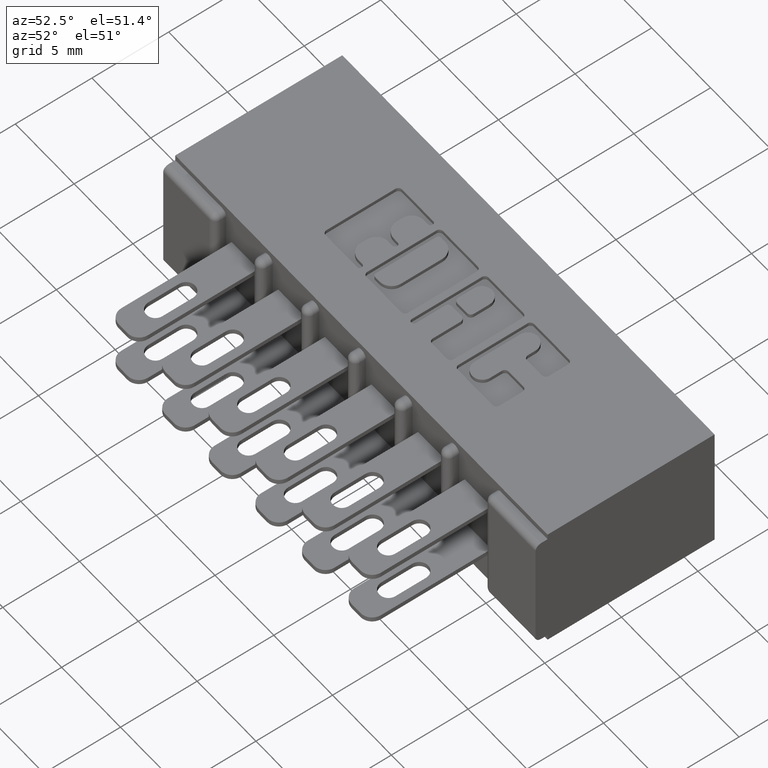
[diagram: clean part render]
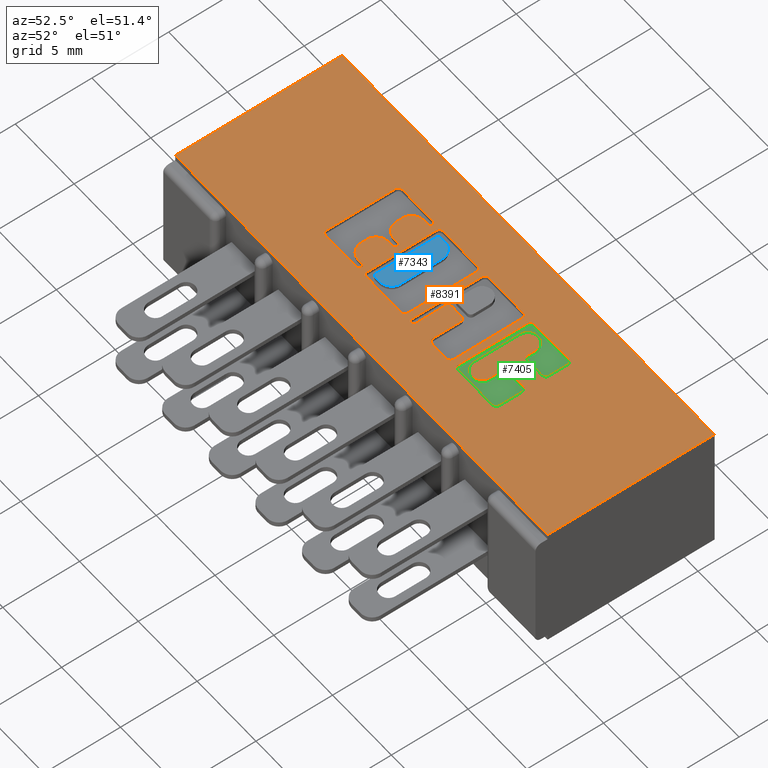
[diagram: same view with three faces highlighted in distinct colors, each labeled with its STEP entity id]
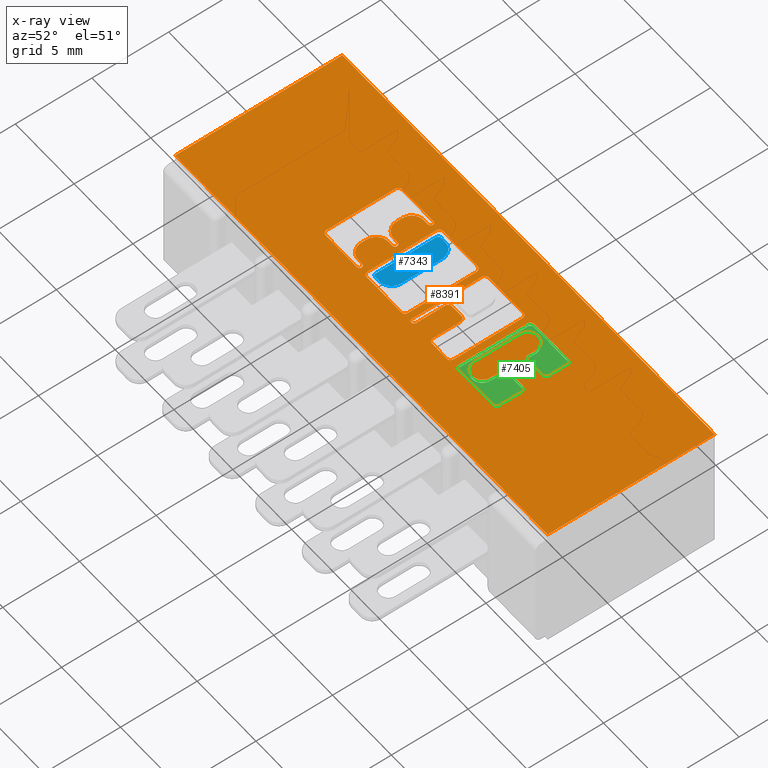
[diagram: x-ray of the same camera — body ghosted, the three highlighted faces saturated]
A machine part, auxiliary view with three faces highlighted in distinct colors.
The next image is the same camera in x-ray (body ghosted, the three faces saturated) — at least one of them is partly hidden behind the body in this view.
Their STEP definitions:

[orange] entity #8391 — the highlighted planar face has unit normal (0, 0, -1).
#5 = AXIS2_PLACEMENT_3D ( 'NONE', #5784, #5680, #9920 ) ;
#7 = EDGE_CURVE ( 'NONE', #601, #222, #1098, .T. ) ;
#14 = ORIENTED_EDGE ( 'NONE', *, *, #10543, .T. ) ;
#17 = CARTESIAN_POINT ( 'NONE',  ( 1.217678631909972400, 0.2842718973050414900, 0.0000000000000000000 ) ) ;
#18 = CARTESIAN_POINT ( 'NONE',  ( 1.095964321382818700, 0.0000000000000000000, 0.0000000000000000000 ) ) ;
#31 = DIRECTION ( 'NONE',  ( 0.0000000000000000000, -1.000000000000000000, 0.0000000000000000000 ) ) ;
#36 = AXIS2_PLACEMENT_3D ( 'NONE', #8020, #8057, #8849 ) ;
#39 = EDGE_CURVE ( 'NONE', #3482, #2229, #10098, .T. ) ;
#43 = EDGE_LOOP ( 'NONE', ( #6002, #8703, #5438, #4950 ) ) ;
#77 = CARTESIAN_POINT ( 'NONE',  ( 0.0000000000000000000, 0.3436567020380538200, 0.0000000000000000000 ) ) ;
#81 = EDGE_CURVE ( 'NONE', #483, #5901, #3428, .T. ) ;
#110 = EDGE_CURVE ( 'NONE', #3482, #10382, #9584, .T. ) ;
#115 = EDGE_CURVE ( 'NONE', #512, #3796, #5336, .T. ) ;
#121 = CARTESIAN_POINT ( 'NONE',  ( 1.065044960240807000, 0.0000000000000000000, 0.0000000000000000000 ) ) ;
#159 = EDGE_CURVE ( 'NONE', #6793, #7732, #8695, .T. ) ;
#190 = LINE ( 'NONE', #5929, #5721 ) ;
#197 = AXIS2_PLACEMENT_3D ( 'NONE', #3064, #6382, #10415 ) ;
#222 = VERTEX_POINT ( 'NONE', #4384 ) ;
#231 = CARTESIAN_POINT ( 'NONE',  ( 1.207862961706153400, 0.2170345564089732300, 0.0000000000000000000 ) ) ;
#248 = EDGE_CURVE ( 'NONE', #1430, #3179, #6464, .T. ) ;
#287 = VECTOR ( 'NONE', #522, 39.37007874015748100 ) ;
#291 = CIRCLE ( 'NONE', #4649, 0.009815670203805798900 ) ;
#307 = AXIS2_PLACEMENT_3D ( 'NONE', #4393, #6822, #2879 ) ;
#322 = EDGE_CURVE ( 'NONE', #780, #9105, #729, .T. ) ;
#341 = VERTEX_POINT ( 'NONE', #2380 ) ;
#342 = CARTESIAN_POINT ( 'NONE',  ( 0.7092269153529097100, 0.2837811137948611500, 0.0000000000000000000 ) ) ;
#345 = CARTESIAN_POINT ( 'NONE',  ( 1.148478156973179200, 0.0000000000000000000, 0.0000000000000000000 ) ) ;
#352 = EDGE_CURVE ( 'NONE', #4243, #483, #855, .T. ) ;
#357 = VECTOR ( 'NONE', #9876, 39.37007874015748100 ) ;
#387 = VECTOR ( 'NONE', #1334, 39.37007874015748100 ) ;
#438 = DIRECTION ( 'NONE',  ( 0.0000000000000000000, 0.0000000000000000000, -1.000000000000000000 ) ) ;
#450 = DIRECTION ( 'NONE',  ( 1.000000000000000000, 0.0000000000000000000, 0.0000000000000000000 ) ) ;
#465 = VERTEX_POINT ( 'NONE', #4371 ) ;
#468 = CARTESIAN_POINT ( 'NONE',  ( 1.148478156973179200, 0.2170345564089715100, 0.0000000000000000000 ) ) ;
#483 = VERTEX_POINT ( 'NONE', #8396 ) ;
#487 = LINE ( 'NONE', #6375, #6748 ) ;
#488 = AXIS2_PLACEMENT_3D ( 'NONE', #231, #2607, #5148 ) ;
#504 = DIRECTION ( 'NONE',  ( 1.000000000000000000, 0.0000000000000000000, 0.0000000000000000000 ) ) ;
#508 = EDGE_LOOP ( 'NONE', ( #6326, #6183, #727, #7474, #7504, #555, #941, #3724, #9700, #2471, #10522, #6200, #9286, #6437 ) ) ;
#512 = VERTEX_POINT ( 'NONE', #1090 ) ;
#522 = DIRECTION ( 'NONE',  ( -1.000000000000000000, 0.0000000000000000000, 0.0000000000000000000 ) ) ;
#544 = PLANE ( 'NONE',  #1474 ) ;
#555 = ORIENTED_EDGE ( 'NONE', *, *, #6212, .F. ) ;
#585 = DIRECTION ( 'NONE',  ( 1.000000000000000000, 0.0000000000000000000, 0.0000000000000000000 ) ) ;
#601 = VERTEX_POINT ( 'NONE', #9523 ) ;
#613 = CARTESIAN_POINT ( 'NONE',  ( 0.7867707099629762700, 0.1473432979619860000, 0.0000000000000000000 ) ) ;
#666 = LINE ( 'NONE', #2085, #387 ) ;
#697 = VECTOR ( 'NONE', #10159, 39.37007874015748100 ) ;
#700 = VERTEX_POINT ( 'NONE', #8801 ) ;
#727 = ORIENTED_EDGE ( 'NONE', *, *, #8744, .T. ) ;
#728 = AXIS2_PLACEMENT_3D ( 'NONE', #7249, #10503, #585 ) ;
#729 = LINE ( 'NONE', #2417, #6711 ) ;
#769 = DIRECTION ( 'NONE',  ( -0.0000000000000000000, 0.0000000000000000000, 1.000000000000000000 ) ) ;
#780 = VERTEX_POINT ( 'NONE', #4728 ) ;
#792 = VERTEX_POINT ( 'NONE', #7422 ) ;
#802 = VERTEX_POINT ( 'NONE', #17 ) ;
#855 = CIRCLE ( 'NONE', #5443, 0.009815670203841039800 ) ;
#861 = VERTEX_POINT ( 'NONE', #8158 ) ;
#871 = CIRCLE ( 'NONE', #6817, 0.006870969142662229500 ) ;
#877 = VERTEX_POINT ( 'NONE', #9085 ) ;
#899 = ORIENTED_EDGE ( 'NONE', *, *, #9459, .F. ) ;
#900 = CARTESIAN_POINT ( 'NONE',  ( 0.2979999999999999900, 0.4600000000000000200, 0.0000000000000000000 ) ) ;
#914 = EDGE_CURVE ( 'NONE', #4820, #2507, #2387, .T. ) ;
#939 = CARTESIAN_POINT ( 'NONE',  ( 0.0000000000000000000, 0.2523709691426866400, 0.0000000000000000000 ) ) ;
#941 = ORIENTED_EDGE ( 'NONE', *, *, #5544, .T. ) ;
#949 = DIRECTION ( 'NONE',  ( 0.0000000000000000000, -1.000000000000000000, 0.0000000000000000000 ) ) ;
#954 = VECTOR ( 'NONE', #5772, 39.37007874015748100 ) ;
#958 = LINE ( 'NONE', #5818, #9817 ) ;
#966 = CARTESIAN_POINT ( 'NONE',  ( 1.207862961706167400, 0.2744562271012364600, 0.0000000000000000000 ) ) ;
#987 = CIRCLE ( 'NONE', #5581, 0.009815670203788042300 ) ;
#995 = VERTEX_POINT ( 'NONE', #10405 ) ;
#997 = EDGE_CURVE ( 'NONE', #6696, #3456, #1198, .T. ) ;
#1002 = AXIS2_PLACEMENT_3D ( 'NONE', #3289, #8738, #10489 ) ;
#1020 = EDGE_CURVE ( 'NONE', #8858, #9778, #2101, .T. ) ;
#1090 = CARTESIAN_POINT ( 'NONE',  ( 1.217678631909940400, 0.2170345564089732300, 0.0000000000000000000 ) ) ;
#1095 = AXIS2_PLACEMENT_3D ( 'NONE', #7162, #3093, #1514 ) ;
#1098 = CIRCLE ( 'NONE', #197, 0.009815670203806345400 ) ;
#1100 = DIRECTION ( 'NONE',  ( -0.0000000000000000000, 0.0000000000000000000, 1.000000000000000000 ) ) ;
#1128 = CARTESIAN_POINT ( 'NONE',  ( 1.842000000000000700, 0.03100000000000000000, 0.0000000000000000000 ) ) ;
#1147 = ORIENTED_EDGE ( 'NONE', *, *, #6408, .T. ) ;
#1173 = CARTESIAN_POINT ( 'NONE',  ( 1.148478156973166100, 0.3036578454992627200, 0.0000000000000000000 ) ) ;
#1198 = CIRCLE ( 'NONE', #3418, 0.009815670203806754800 ) ;
#1199 = LINE ( 'NONE', #10614, #5450 ) ;
#1214 = EDGE_CURVE ( 'NONE', #9530, #7235, #3519, .T. ) ;
#1241 = DIRECTION ( 'NONE',  ( 0.0000000000000000000, -1.000000000000000000, 0.0000000000000000000 ) ) ;
#1250 = EDGE_CURVE ( 'NONE', #8581, #4243, #7087, .T. ) ;
#1278 = ORIENTED_EDGE ( 'NONE', *, *, #4542, .F. ) ;
#1311 = ORIENTED_EDGE ( 'NONE', *, *, #9101, .F. ) ;
#1334 = DIRECTION ( 'NONE',  ( 0.0000000000000000000, 1.000000000000000000, -0.0000000000000000000 ) ) ;
#1345 = ORIENTED_EDGE ( 'NONE', *, *, #7779, .F. ) ;
#1389 = ORIENTED_EDGE ( 'NONE', *, *, #9694, .F. ) ;
#1401 = CARTESIAN_POINT ( 'NONE',  ( 1.148478156973166100, 0.2842718973050480400, 0.0000000000000000000 ) ) ;
#1430 = VERTEX_POINT ( 'NONE', #900 ) ;
#1474 = AXIS2_PLACEMENT_3D ( 'NONE', #5357, #438, #6987 ) ;
#1495 = DIRECTION ( 'NONE',  ( -1.000000000000000000, 0.0000000000000000000, 0.0000000000000000000 ) ) ;
#1507 = CARTESIAN_POINT ( 'NONE',  ( 0.7867707099630104600, 0.3338410318342129300, 0.0000000000000000000 ) ) ;
#1514 = DIRECTION ( 'NONE',  ( 1.000000000000000000, 0.0000000000000000000, 0.0000000000000000000 ) ) ;
#1535 = CIRCLE ( 'NONE', #4861, 0.009815670203803340800 ) ;
#1586 = ORIENTED_EDGE ( 'NONE', *, *, #3621, .F. ) ;
#1623 = DIRECTION ( 'NONE',  ( 1.000000000000000000, 0.0000000000000000000, 0.0000000000000000000 ) ) ;
#1635 = EDGE_CURVE ( 'NONE', #7235, #6615, #2742, .T. ) ;
#1653 = CARTESIAN_POINT ( 'NONE',  ( 0.9433306497136472200, 0.0000000000000000000, 0.0000000000000000000 ) ) ;
#1667 = VERTEX_POINT ( 'NONE', #966 ) ;
#1674 = LINE ( 'NONE', #9252, #2313 ) ;
#1682 = DIRECTION ( 'NONE',  ( -0.0000000000000000000, 0.0000000000000000000, 1.000000000000000000 ) ) ;
#1712 = LINE ( 'NONE', #7213, #2997 ) ;
#1765 = CARTESIAN_POINT ( 'NONE',  ( 1.544000000000000700, 0.4600000000000000200, 0.0000000000000000000 ) ) ;
#1841 = EDGE_CURVE ( 'NONE', #2014, #10043, #10067, .T. ) ;
#1846 = VECTOR ( 'NONE', #7519, 39.37007874015748100 ) ;
#1865 = CARTESIAN_POINT ( 'NONE',  ( -8.177847276076918000E-015, 0.2386290308573187900, 0.0000000000000000000 ) ) ;
#1883 = EDGE_CURVE ( 'NONE', #3796, #3682, #6299, .T. ) ;
#1911 = ORIENTED_EDGE ( 'NONE', *, *, #997, .F. ) ;
#1921 = LINE ( 'NONE', #8249, #357 ) ;
#1963 = VECTOR ( 'NONE', #9369, 39.37007874015748100 ) ;
#1975 = EDGE_CURVE ( 'NONE', #5298, #4245, #6670, .T. ) ;
#1981 = CARTESIAN_POINT ( 'NONE',  ( 0.7541336065353515500, 0.3436567020380355600, 0.0000000000000000000 ) ) ;
#1988 = LINE ( 'NONE', #121, #10478 ) ;
#2014 = VERTEX_POINT ( 'NONE', #8810 ) ;
#2062 = VERTEX_POINT ( 'NONE', #9031 ) ;
#2076 = ORIENTED_EDGE ( 'NONE', *, *, #1250, .F. ) ;
#2085 = CARTESIAN_POINT ( 'NONE',  ( 0.9295887114283312200, 0.0000000000000000000, 0.0000000000000000000 ) ) ;
#2090 = CIRCLE ( 'NONE', #2899, 0.006870969142662229500 ) ;
#2091 = CARTESIAN_POINT ( 'NONE',  ( -1.013135022034653000E-015, 0.1473432979619833400, 0.0000000000000000000 ) ) ;
#2101 = CIRCLE ( 'NONE', #10075, 0.03141014465215624000 ) ;
#2122 = VERTEX_POINT ( 'NONE', #8347 ) ;
#2150 = CARTESIAN_POINT ( 'NONE',  ( 0.9394043816321276900, 0.3436567020380094100, 0.0000000000000000000 ) ) ;
#2218 = ORIENTED_EDGE ( 'NONE', *, *, #6484, .F. ) ;
#2220 = ORIENTED_EDGE ( 'NONE', *, *, #9879, .T. ) ;
#2226 = DIRECTION ( 'NONE',  ( 1.000000000000000000, 0.0000000000000000000, 0.0000000000000000000 ) ) ;
#2229 = VERTEX_POINT ( 'NONE', #6182 ) ;
#2245 = CIRCLE ( 'NONE', #8404, 0.006870969142657995000 ) ;
#2274 = ORIENTED_EDGE ( 'NONE', *, *, #9136, .F. ) ;
#2293 = CARTESIAN_POINT ( 'NONE',  ( 0.6400264404161156700, 0.3338410318342129300, 0.0000000000000000000 ) ) ;
#2300 = CARTESIAN_POINT ( 'NONE',  ( -1.915567620543394800E-014, 0.1610852362472233500, 0.0000000000000000000 ) ) ;
#2313 = VECTOR ( 'NONE', #7781, 39.37007874015748100 ) ;
#2325 = CARTESIAN_POINT ( 'NONE',  ( 1.095964321382818700, 0.1873421540424558300, 0.0000000000000000000 ) ) ;
#2344 = DIRECTION ( 'NONE',  ( 1.000000000000000000, 0.0000000000000000000, 0.0000000000000000000 ) ) ;
#2374 = CARTESIAN_POINT ( 'NONE',  ( 0.2979999999999999900, 0.0000000000000000000, 0.0000000000000000000 ) ) ;
#2380 = CARTESIAN_POINT ( 'NONE',  ( 0.7769550397591695700, 0.3338410318342129300, 0.0000000000000000000 ) ) ;
#2381 = EDGE_CURVE ( 'NONE', #5901, #341, #7995, .T. ) ;
#2387 = LINE ( 'NONE', #4951, #954 ) ;
#2398 = CIRCLE ( 'NONE', #4069, 0.009815670203840084000 ) ;
#2417 = CARTESIAN_POINT ( 'NONE',  ( 1.082222383097458900, 0.0000000000000000000, 0.0000000000000000000 ) ) ;
#2422 = VECTOR ( 'NONE', #8813, 39.37007874015748100 ) ;
#2429 = DIRECTION ( 'NONE',  ( 0.0000000000000000000, 1.000000000000000000, -0.0000000000000000000 ) ) ;
#2461 = DIRECTION ( 'NONE',  ( -0.0000000000000000000, 0.0000000000000000000, 1.000000000000000000 ) ) ;
#2471 = ORIENTED_EDGE ( 'NONE', *, *, #3908, .T. ) ;
#2507 = VERTEX_POINT ( 'NONE', #5932 ) ;
#2538 = CARTESIAN_POINT ( 'NONE',  ( 1.158293827176967400, 0.2170345564089724000, 0.0000000000000000000 ) ) ;
#2539 = VECTOR ( 'NONE', #5495, 39.37007874015748100 ) ;
#2568 = DIRECTION ( 'NONE',  ( 1.000000000000000000, 0.0000000000000000000, 0.0000000000000000000 ) ) ;
#2574 = VERTEX_POINT ( 'NONE', #6992 ) ;
#2584 = CIRCLE ( 'NONE', #4729, 0.03141014465218178200 ) ;
#2607 = DIRECTION ( 'NONE',  ( -0.0000000000000000000, 0.0000000000000000000, 1.000000000000000000 ) ) ;
#2633 = VECTOR ( 'NONE', #2897, 39.37007874015748100 ) ;
#2655 = CIRCLE ( 'NONE', #3342, 0.009815670203806891800 ) ;
#2673 = CIRCLE ( 'NONE', #5, 0.009815670203840767500 ) ;
#2690 = ORIENTED_EDGE ( 'NONE', *, *, #7733, .F. ) ;
#2691 = VERTEX_POINT ( 'NONE', #7574 ) ;
#2697 = DIRECTION ( 'NONE',  ( -0.0000000000000000000, 0.0000000000000000000, 1.000000000000000000 ) ) ;
#2706 = CARTESIAN_POINT ( 'NONE',  ( 0.7610045756779980600, 0.1542142671046507800, 0.0000000000000000000 ) ) ;
#2742 = LINE ( 'NONE', #1865, #1846 ) ;
#2778 = CARTESIAN_POINT ( 'NONE',  ( 0.7610045756779999500, 0.3367857328953891000, 0.0000000000000000000 ) ) ;
#2792 = DIRECTION ( 'NONE',  ( -0.0000000000000000000, 0.0000000000000000000, 1.000000000000000000 ) ) ;
#2823 = CARTESIAN_POINT ( 'NONE',  ( 0.7541336065353515500, 0.3367857328953891000, 0.0000000000000000000 ) ) ;
#2879 = DIRECTION ( 'NONE',  ( 1.000000000000000000, 0.0000000000000000000, 0.0000000000000000000 ) ) ;
#2897 = DIRECTION ( 'NONE',  ( -0.0000000000000000000, 1.000000000000000000, -0.0000000000000000000 ) ) ;
#2899 = AXIS2_PLACEMENT_3D ( 'NONE', #7284, #8957, #8246 ) ;
#2908 = DIRECTION ( 'NONE',  ( 1.000000000000000000, 0.0000000000000000000, 0.0000000000000000000 ) ) ;
#2914 = EDGE_CURVE ( 'NONE', #5692, #2229, #666, .T. ) ;
#2917 = LINE ( 'NONE', #345, #7406 ) ;
#2927 = CIRCLE ( 'NONE', #8257, 0.02625691779518022500 ) ;
#2928 = CARTESIAN_POINT ( 'NONE',  ( 0.7769550397591695700, 0.1571589681657927500, 0.0000000000000000000 ) ) ;
#2951 = CARTESIAN_POINT ( 'NONE',  ( 0.6498421106199224800, 0.1571589681657927500, 0.0000000000000000000 ) ) ;
#2980 = ORIENTED_EDGE ( 'NONE', *, *, #7890, .F. ) ;
#2997 = VECTOR ( 'NONE', #3990, 39.37007874015748100 ) ;
#3025 = AXIS2_PLACEMENT_3D ( 'NONE', #1507, #7230, #2344 ) ;
#3064 = CARTESIAN_POINT ( 'NONE',  ( 1.207862961706134500, 0.1571589681657927500, 0.0000000000000000000 ) ) ;
#3093 = DIRECTION ( 'NONE',  ( -0.0000000000000000000, 0.0000000000000000000, 1.000000000000000000 ) ) ;
#3128 = CARTESIAN_POINT ( 'NONE',  ( 1.207862961706168700, 0.3436567020380538200, 0.0000000000000000000 ) ) ;
#3154 = DIRECTION ( 'NONE',  ( -0.0000000000000000000, 0.0000000000000000000, 1.000000000000000000 ) ) ;
#3173 = CIRCLE ( 'NONE', #9990, 0.006870969142648433200 ) ;
#3174 = AXIS2_PLACEMENT_3D ( 'NONE', #6555, #1682, #4139 ) ;
#3179 = VERTEX_POINT ( 'NONE', #1765 ) ;
#3199 = DIRECTION ( 'NONE',  ( -0.0000000000000000000, 0.0000000000000000000, 1.000000000000000000 ) ) ;
#3222 = ORIENTED_EDGE ( 'NONE', *, *, #1841, .F. ) ;
#3228 = LINE ( 'NONE', #6164, #7310 ) ;
#3289 = CARTESIAN_POINT ( 'NONE',  ( 1.122221239177992400, 0.3036578459575323700, 0.0000000000000000000 ) ) ;
#3342 = AXIS2_PLACEMENT_3D ( 'NONE', #4695, #4584, #504 ) ;
#3399 = LINE ( 'NONE', #4512, #2633 ) ;
#3418 = AXIS2_PLACEMENT_3D ( 'NONE', #3861, #6242, #4668 ) ;
#3425 = CARTESIAN_POINT ( 'NONE',  ( 0.7406370600050843400, 0.2837811137948611500, 0.0000000000000000000 ) ) ;
#3428 = LINE ( 'NONE', #77, #5463 ) ;
#3431 = CARTESIAN_POINT ( 'NONE',  ( 1.207862961706156900, 0.2268502266127603600, 0.0000000000000000000 ) ) ;
#3438 = ORIENTED_EDGE ( 'NONE', *, *, #1975, .F. ) ;
#3456 = VERTEX_POINT ( 'NONE', #613 ) ;
#3472 = EDGE_LOOP ( 'NONE', ( #4411, #2076, #2980, #10065, #1911, #5151, #5716, #6907 ) ) ;
#3482 = VERTEX_POINT ( 'NONE', #2150 ) ;
#3519 = CIRCLE ( 'NONE', #307, 0.009815670203796920600 ) ;
#3520 = LINE ( 'NONE', #939, #287 ) ;
#3529 = DIRECTION ( 'NONE',  ( -0.0000000000000000000, 0.0000000000000000000, 1.000000000000000000 ) ) ;
#3557 = ORIENTED_EDGE ( 'NONE', *, *, #4027, .F. ) ;
#3592 = CARTESIAN_POINT ( 'NONE',  ( 0.9364596805709872700, 0.1542142671046507800, 0.0000000000000000000 ) ) ;
#3597 = CARTESIAN_POINT ( 'NONE',  ( 0.7092269153529280300, 0.1924953808994932000, 0.0000000000000000000 ) ) ;
#3601 = EDGE_CURVE ( 'NONE', #5846, #861, #3228, .T. ) ;
#3621 = EDGE_CURVE ( 'NONE', #2062, #3640, #10265, .T. ) ;
#3640 = VERTEX_POINT ( 'NONE', #10286 ) ;
#3653 = DIRECTION ( 'NONE',  ( -0.0000000000000000000, 0.0000000000000000000, 1.000000000000000000 ) ) ;
#3676 = DIRECTION ( 'NONE',  ( -0.0000000000000000000, 0.0000000000000000000, 1.000000000000000000 ) ) ;
#3682 = VERTEX_POINT ( 'NONE', #8788 ) ;
#3688 = DIRECTION ( 'NONE',  ( -0.0000000000000000000, 0.0000000000000000000, 1.000000000000000000 ) ) ;
#3723 = ORIENTED_EDGE ( 'NONE', *, *, #6812, .F. ) ;
#3724 = ORIENTED_EDGE ( 'NONE', *, *, #1214, .T. ) ;
#3725 = CARTESIAN_POINT ( 'NONE',  ( 0.9124112885716693100, 0.3338410318342129300, 0.0000000000000000000 ) ) ;
#3739 = CARTESIAN_POINT ( 'NONE',  ( 1.055229290037014200, 0.3436567020380094100, 0.0000000000000000000 ) ) ;
#3769 = EDGE_CURVE ( 'NONE', #792, #5727, #10542, .T. ) ;
#3774 = CIRCLE ( 'NONE', #7004, 0.009815670203806754800 ) ;
#3776 = VERTEX_POINT ( 'NONE', #6269 ) ;
#3796 = VERTEX_POINT ( 'NONE', #3431 ) ;
#3825 = DIRECTION ( 'NONE',  ( -0.0000000000000000000, 0.0000000000000000000, 1.000000000000000000 ) ) ;
#3841 = DIRECTION ( 'NONE',  ( -0.0000000000000000000, 0.0000000000000000000, 1.000000000000000000 ) ) ;
#3861 = CARTESIAN_POINT ( 'NONE',  ( 0.7867707099629762700, 0.1571589681657927500, 0.0000000000000000000 ) ) ;
#3908 = EDGE_CURVE ( 'NONE', #6615, #995, #5385, .T. ) ;
#3920 = CARTESIAN_POINT ( 'NONE',  ( 0.7867707099630104600, 0.3436567020380538200, 0.0000000000000000000 ) ) ;
#3938 = VECTOR ( 'NONE', #4956, 39.37007874015748100 ) ;
#3954 = EDGE_CURVE ( 'NONE', #7784, #10043, #2584, .T. ) ;
#3963 = ORIENTED_EDGE ( 'NONE', *, *, #8525, .F. ) ;
#3969 = CARTESIAN_POINT ( 'NONE',  ( 0.7406370600050843400, 0.2523709691426866400, 0.0000000000000000000 ) ) ;
#3990 = DIRECTION ( 'NONE',  ( 1.000000000000000000, 0.0000000000000000000, 0.0000000000000000000 ) ) ;
#3993 = DIRECTION ( 'NONE',  ( -0.0000000000000000000, 0.0000000000000000000, 1.000000000000000000 ) ) ;
#4007 = CARTESIAN_POINT ( 'NONE',  ( 0.9531463199174504700, 0.2386290308573514900, 0.0000000000000000000 ) ) ;
#4027 = EDGE_CURVE ( 'NONE', #222, #512, #1921, .T. ) ;
#4056 = CARTESIAN_POINT ( 'NONE',  ( 1.055229290037010800, 0.1571589681657836700, 0.0000000000000000000 ) ) ;
#4069 = AXIS2_PLACEMENT_3D ( 'NONE', #4098, #3993, #5678 ) ;
#4098 = CARTESIAN_POINT ( 'NONE',  ( 1.207862961706132300, 0.3338410318342137600, 0.0000000000000000000 ) ) ;
#4139 = DIRECTION ( 'NONE',  ( 1.000000000000000000, 0.0000000000000000000, 0.0000000000000000000 ) ) ;
#4163 = FACE_OUTER_BOUND ( 'NONE', #43, .T. ) ;
#4207 = EDGE_CURVE ( 'NONE', #6803, #2691, #1674, .T. ) ;
#4209 = VECTOR ( 'NONE', #9212, 39.37007874015748100 ) ;
#4219 = ORIENTED_EDGE ( 'NONE', *, *, #115, .F. ) ;
#4243 = VERTEX_POINT ( 'NONE', #3725 ) ;
#4245 = VERTEX_POINT ( 'NONE', #5309 ) ;
#4273 = VERTEX_POINT ( 'NONE', #7819 ) ;
#4275 = CARTESIAN_POINT ( 'NONE',  ( 0.2979999999999999900, 0.03100000000000000000, 0.0000000000000000000 ) ) ;
#4315 = ORIENTED_EDGE ( 'NONE', *, *, #5751, .F. ) ;
#4330 = VERTEX_POINT ( 'NONE', #10529 ) ;
#4352 = AXIS2_PLACEMENT_3D ( 'NONE', #4623, #6370, #9563 ) ;
#4371 = CARTESIAN_POINT ( 'NONE',  ( 1.217678631909972400, 0.3338410318341976700, 0.0000000000000000000 ) ) ;
#4373 = AXIS2_PLACEMENT_3D ( 'NONE', #5271, #9388, #10261 ) ;
#4381 = CARTESIAN_POINT ( 'NONE',  ( 0.7541336065353357900, 0.1542142671046507800, 0.0000000000000000000 ) ) ;
#4384 = CARTESIAN_POINT ( 'NONE',  ( 1.217678631909940400, 0.1571589681657857800, 0.0000000000000000000 ) ) ;
#4393 = CARTESIAN_POINT ( 'NONE',  ( 0.9860288151001880300, 0.2288133606535556200, 0.0000000000000000000 ) ) ;
#4407 = DIRECTION ( 'NONE',  ( 1.000000000000000000, 6.876017002796124400E-015, 0.0000000000000000000 ) ) ;
#4411 = ORIENTED_EDGE ( 'NONE', *, *, #352, .F. ) ;
#4415 = VECTOR ( 'NONE', #2429, 39.37007874015748100 ) ;
#4422 = CARTESIAN_POINT ( 'NONE',  ( 1.055229290037011900, 0.3338410318342132100, 0.0000000000000000000 ) ) ;
#4461 = VECTOR ( 'NONE', #4407, 39.37007874015748100 ) ;
#4468 = ORIENTED_EDGE ( 'NONE', *, *, #5856, .F. ) ;
#4493 = CIRCLE ( 'NONE', #1002, 0.02625691779517367100 ) ;
#4495 = DIRECTION ( 'NONE',  ( 1.000000000000000000, 0.0000000000000000000, 0.0000000000000000000 ) ) ;
#4503 = AXIS2_PLACEMENT_3D ( 'NONE', #8562, #5553, #6381 ) ;
#4512 = CARTESIAN_POINT ( 'NONE',  ( 1.544000000000000700, 0.0000000000000000000, 0.0000000000000000000 ) ) ;
#4515 = EDGE_CURVE ( 'NONE', #5334, #8364, #7420, .T. ) ;
#4542 = EDGE_CURVE ( 'NONE', #8037, #601, #487, .T. ) ;
#4558 = EDGE_CURVE ( 'NONE', #995, #4330, #8732, .T. ) ;
#4560 = DIRECTION ( 'NONE',  ( 1.000000000000000000, 0.0000000000000000000, 0.0000000000000000000 ) ) ;
#4584 = DIRECTION ( 'NONE',  ( -0.0000000000000000000, 0.0000000000000000000, 1.000000000000000000 ) ) ;
#4600 = CARTESIAN_POINT ( 'NONE',  ( 0.7092269153529280300, 0.2072188862052033700, 0.0000000000000000000 ) ) ;
#4623 = CARTESIAN_POINT ( 'NONE',  ( 1.158293827176977600, 0.2842718973050480400, 0.0000000000000000000 ) ) ;
#4627 = CARTESIAN_POINT ( 'NONE',  ( 0.0000000000000000000, 0.1473432979619874200, 0.0000000000000000000 ) ) ;
#4649 = AXIS2_PLACEMENT_3D ( 'NONE', #2951, #3688, #2908 ) ;
#4668 = DIRECTION ( 'NONE',  ( 1.000000000000000000, 0.0000000000000000000, 0.0000000000000000000 ) ) ;
#4695 = CARTESIAN_POINT ( 'NONE',  ( 0.9025956183678624000, 0.1571589681657927500, 0.0000000000000000000 ) ) ;
#4728 = CARTESIAN_POINT ( 'NONE',  ( 1.082222383097458900, 0.3338410318342129300, 0.0000000000000000000 ) ) ;
#4729 = AXIS2_PLACEMENT_3D ( 'NONE', #6845, #3676, #6885 ) ;
#4754 = CARTESIAN_POINT ( 'NONE',  ( 1.092038053301265700, 0.1571589681657927500, 0.0000000000000000000 ) ) ;
#4785 = CARTESIAN_POINT ( 'NONE',  ( 1.148478156973166100, 0.0000000000000000000, 0.0000000000000000000 ) ) ;
#4820 = VERTEX_POINT ( 'NONE', #1981 ) ;
#4861 = AXIS2_PLACEMENT_3D ( 'NONE', #6185, #3841, #9517 ) ;
#4881 = DIRECTION ( 'NONE',  ( -1.000000000000000000, 0.0000000000000000000, 0.0000000000000000000 ) ) ;
#4890 = DIRECTION ( 'NONE',  ( -0.0000000000000000000, 0.0000000000000000000, 1.000000000000000000 ) ) ;
#4923 = CARTESIAN_POINT ( 'NONE',  ( 0.9958444853039849500, 0.0000000000000000000, 0.0000000000000000000 ) ) ;
#4930 = CARTESIAN_POINT ( 'NONE',  ( 1.092038053301265700, 0.1473432979619860000, 0.0000000000000000000 ) ) ;
#4950 = ORIENTED_EDGE ( 'NONE', *, *, #7508, .F. ) ;
#4951 = CARTESIAN_POINT ( 'NONE',  ( 0.0000000000000000000, 0.3436567020380355600, 0.0000000000000000000 ) ) ;
#4956 = DIRECTION ( 'NONE',  ( 0.0000000000000000000, 1.000000000000000000, -0.0000000000000000000 ) ) ;
#4972 = ORIENTED_EDGE ( 'NONE', *, *, #7997, .F. ) ;
#5130 = EDGE_CURVE ( 'NONE', #6322, #5296, #2917, .T. ) ;
#5148 = DIRECTION ( 'NONE',  ( 1.000000000000000000, 0.0000000000000000000, 0.0000000000000000000 ) ) ;
#5151 = ORIENTED_EDGE ( 'NONE', *, *, #8146, .F. ) ;
#5182 = FACE_BOUND ( 'NONE', #3472, .T. ) ;
#5231 = VECTOR ( 'NONE', #6443, 39.37007874015748100 ) ;
#5249 = DIRECTION ( 'NONE',  ( -0.0000000000000000000, 0.0000000000000000000, 1.000000000000000000 ) ) ;
#5271 = CARTESIAN_POINT ( 'NONE',  ( 0.7541336065353515500, 0.3367857328953891000, 0.0000000000000000000 ) ) ;
#5296 = VERTEX_POINT ( 'NONE', #6245 ) ;
#5298 = VERTEX_POINT ( 'NONE', #1401 ) ;
#5309 = CARTESIAN_POINT ( 'NONE',  ( 1.158293827176977600, 0.2744562271012364100, 0.0000000000000000000 ) ) ;
#5334 = VERTEX_POINT ( 'NONE', #8082 ) ;
#5336 = CIRCLE ( 'NONE', #488, 0.009815670203787086500 ) ;
#5341 = VERTEX_POINT ( 'NONE', #3128 ) ;
#5357 = CARTESIAN_POINT ( 'NONE',  ( 0.0000000000000000000, 0.4600000000000000200, 0.0000000000000000000 ) ) ;
#5384 = CARTESIAN_POINT ( 'NONE',  ( 0.9860288151001884700, 0.2386290308573526000, 0.0000000000000000000 ) ) ;
#5385 = CIRCLE ( 'NONE', #4503, 0.009815670203803203800 ) ;
#5396 = DIRECTION ( 'NONE',  ( 1.000000000000000000, 0.0000000000000000000, 0.0000000000000000000 ) ) ;
#5408 = DIRECTION ( 'NONE',  ( -1.000000000000000000, -1.189163988687022500E-013, 0.0000000000000000000 ) ) ;
#5438 = ORIENTED_EDGE ( 'NONE', *, *, #248, .F. ) ;
#5443 = AXIS2_PLACEMENT_3D ( 'NONE', #5698, #2461, #2568 ) ;
#5450 = VECTOR ( 'NONE', #31, 39.37007874015748100 ) ;
#5463 = VECTOR ( 'NONE', #4881, 39.37007874015748100 ) ;
#5474 = ORIENTED_EDGE ( 'NONE', *, *, #5130, .F. ) ;
#5495 = DIRECTION ( 'NONE',  ( 0.0000000000000000000, 1.000000000000000000, -0.0000000000000000000 ) ) ;
#5544 = EDGE_CURVE ( 'NONE', #877, #9530, #7527, .T. ) ;
#5553 = DIRECTION ( 'NONE',  ( -0.0000000000000000000, 0.0000000000000000000, 1.000000000000000000 ) ) ;
#5581 = AXIS2_PLACEMENT_3D ( 'NONE', #2538, #769, #7312 ) ;
#5591 = LINE ( 'NONE', #10432, #2539 ) ;
#5624 = CARTESIAN_POINT ( 'NONE',  ( 1.122221239177999100, 0.1873421540424558300, 0.0000000000000000000 ) ) ;
#5678 = DIRECTION ( 'NONE',  ( 1.000000000000000000, 0.0000000000000000000, 0.0000000000000000000 ) ) ;
#5680 = DIRECTION ( 'NONE',  ( -0.0000000000000000000, 0.0000000000000000000, 1.000000000000000000 ) ) ;
#5692 = VERTEX_POINT ( 'NONE', #5911 ) ;
#5697 = ORIENTED_EDGE ( 'NONE', *, *, #4207, .F. ) ;
#5698 = CARTESIAN_POINT ( 'NONE',  ( 0.9025956183678282000, 0.3338410318342128200, 0.0000000000000000000 ) ) ;
#5716 = ORIENTED_EDGE ( 'NONE', *, *, #2381, .F. ) ;
#5721 = VECTOR ( 'NONE', #6724, 39.37007874015748100 ) ;
#5727 = VERTEX_POINT ( 'NONE', #10220 ) ;
#5751 = EDGE_CURVE ( 'NONE', #3640, #8207, #871, .T. ) ;
#5772 = DIRECTION ( 'NONE',  ( -1.000000000000000000, 0.0000000000000000000, 0.0000000000000000000 ) ) ;
#5784 = CARTESIAN_POINT ( 'NONE',  ( 1.092038053301299700, 0.3338410318342129300, 0.0000000000000000000 ) ) ;
#5788 = VERTEX_POINT ( 'NONE', #1173 ) ;
#5816 = ORIENTED_EDGE ( 'NONE', *, *, #10457, .F. ) ;
#5818 = CARTESIAN_POINT ( 'NONE',  ( 0.0000000000000000000, 0.3436567020380538200, 0.0000000000000000000 ) ) ;
#5826 = CIRCLE ( 'NONE', #4373, 0.006870969142648433200 ) ;
#5846 = VERTEX_POINT ( 'NONE', #342 ) ;
#5850 = ORIENTED_EDGE ( 'NONE', *, *, #1020, .T. ) ;
#5856 = EDGE_CURVE ( 'NONE', #5788, #5298, #9083, .T. ) ;
#5863 = ORIENTED_EDGE ( 'NONE', *, *, #6575, .T. ) ;
#5870 = ORIENTED_EDGE ( 'NONE', *, *, #7, .F. ) ;
#5878 = EDGE_CURVE ( 'NONE', #4245, #1667, #9846, .T. ) ;
#5890 = CARTESIAN_POINT ( 'NONE',  ( 0.7610045756779737500, 0.2455000000000231700, 0.0000000000000000000 ) ) ;
#5898 = CARTESIAN_POINT ( 'NONE',  ( -0.0000000000000000000, 0.3436567020380094100, 0.0000000000000000000 ) ) ;
#5901 = VERTEX_POINT ( 'NONE', #3920 ) ;
#5911 = CARTESIAN_POINT ( 'NONE',  ( 0.9295887114283312200, 0.1542142671046507800, 0.0000000000000000000 ) ) ;
#5929 = CARTESIAN_POINT ( 'NONE',  ( -0.0000000000000000000, 0.2386290308573596500, 0.0000000000000000000 ) ) ;
#5932 = CARTESIAN_POINT ( 'NONE',  ( 0.6498421106199383500, 0.3436567020380355600, 0.0000000000000000000 ) ) ;
#6002 = ORIENTED_EDGE ( 'NONE', *, *, #159, .F. ) ;
#6006 = VERTEX_POINT ( 'NONE', #7294 ) ;
#6055 = CARTESIAN_POINT ( 'NONE',  ( 1.065044960240807000, 0.3338410318342037700, 0.0000000000000000000 ) ) ;
#6088 = CARTESIAN_POINT ( 'NONE',  ( 1.065044960240807000, 0.1571589681657836700, 0.0000000000000000000 ) ) ;
#6164 = CARTESIAN_POINT ( 'NONE',  ( 0.7092269153529097100, 0.0000000000000000000, 0.0000000000000000000 ) ) ;
#6166 = AXIS2_PLACEMENT_3D ( 'NONE', #9510, #7117, #4560 ) ;
#6182 = CARTESIAN_POINT ( 'NONE',  ( 0.9295887114283312200, 0.3338410318342129300, 0.0000000000000000000 ) ) ;
#6183 = ORIENTED_EDGE ( 'NONE', *, *, #7134, .F. ) ;
#6185 = CARTESIAN_POINT ( 'NONE',  ( 1.005660155507788200, 0.1571589681657906400, 0.0000000000000000000 ) ) ;
#6200 = ORIENTED_EDGE ( 'NONE', *, *, #9321, .F. ) ;
#6212 = EDGE_CURVE ( 'NONE', #877, #5727, #1535, .T. ) ;
#6232 = AXIS2_PLACEMENT_3D ( 'NONE', #4056, #4890, #6505 ) ;
#6242 = DIRECTION ( 'NONE',  ( -0.0000000000000000000, 0.0000000000000000000, 1.000000000000000000 ) ) ;
#6245 = CARTESIAN_POINT ( 'NONE',  ( 1.148478156973179200, 0.1873421540424558300, 0.0000000000000000000 ) ) ;
#6269 = CARTESIAN_POINT ( 'NONE',  ( 1.095964321382818700, 0.3036578459575323700, 0.0000000000000000000 ) ) ;
#6275 = AXIS2_PLACEMENT_3D ( 'NONE', #3425, #2697, #9178 ) ;
#6299 = LINE ( 'NONE', #8568, #1963 ) ;
#6322 = VERTEX_POINT ( 'NONE', #468 ) ;
#6326 = ORIENTED_EDGE ( 'NONE', *, *, #110, .T. ) ;
#6345 = VECTOR ( 'NONE', #8026, 39.37007874015748100 ) ;
#6370 = DIRECTION ( 'NONE',  ( -0.0000000000000000000, 0.0000000000000000000, 1.000000000000000000 ) ) ;
#6375 = CARTESIAN_POINT ( 'NONE',  ( -0.0000000000000000000, 0.1473432979619860000, 0.0000000000000000000 ) ) ;
#6377 = CARTESIAN_POINT ( 'NONE',  ( 0.9124112885716693100, 0.1571589681657927500, 0.0000000000000000000 ) ) ;
#6381 = DIRECTION ( 'NONE',  ( 1.000000000000000000, 0.0000000000000000000, 0.0000000000000000000 ) ) ;
#6382 = DIRECTION ( 'NONE',  ( -0.0000000000000000000, 0.0000000000000000000, 1.000000000000000000 ) ) ;
#6405 = CARTESIAN_POINT ( 'NONE',  ( -0.0000000000000000000, 0.2744562271012364100, 0.0000000000000000000 ) ) ;
#6408 = EDGE_CURVE ( 'NONE', #5846, #7575, #8596, .T. ) ;
#6437 = ORIENTED_EDGE ( 'NONE', *, *, #39, .F. ) ;
#6443 = DIRECTION ( 'NONE',  ( 0.0000000000000000000, -1.000000000000000000, 0.0000000000000000000 ) ) ;
#6457 = DIRECTION ( 'NONE',  ( 0.0000000000000000000, -1.000000000000000000, 0.0000000000000000000 ) ) ;
#6464 = LINE ( 'NONE', #9474, #9294 ) ;
#6484 = EDGE_CURVE ( 'NONE', #802, #465, #7021, .T. ) ;
#6505 = DIRECTION ( 'NONE',  ( 1.000000000000000000, 0.0000000000000000000, 0.0000000000000000000 ) ) ;
#6555 = CARTESIAN_POINT ( 'NONE',  ( 0.6498421106199383500, 0.3338410318342129300, 0.0000000000000000000 ) ) ;
#6575 = EDGE_CURVE ( 'NONE', #8445, #5296, #2927, .T. ) ;
#6582 = EDGE_LOOP ( 'NONE', ( #2220, #8689, #1147, #3963, #8067, #10097, #2690, #5850, #4972, #7545, #3222, #899, #4315, #1586, #2274, #5697, #10044, #10112, #1389, #1345, #7471 ) ) ;
#6615 = VERTEX_POINT ( 'NONE', #4007 ) ;
#6629 = DIRECTION ( 'NONE',  ( 1.000000000000000000, 0.0000000000000000000, 0.0000000000000000000 ) ) ;
#6670 = CIRCLE ( 'NONE', #4352, 0.009815670203811535700 ) ;
#6696 = VERTEX_POINT ( 'NONE', #2928 ) ;
#6711 = VECTOR ( 'NONE', #6457, 39.37007874015748100 ) ;
#6724 = DIRECTION ( 'NONE',  ( 1.000000000000000000, 0.0000000000000000000, 0.0000000000000000000 ) ) ;
#6748 = VECTOR ( 'NONE', #9816, 39.37007874015748100 ) ;
#6793 = VERTEX_POINT ( 'NONE', #8851 ) ;
#6803 = VERTEX_POINT ( 'NONE', #2293 ) ;
#6812 = EDGE_CURVE ( 'NONE', #700, #780, #2673, .T. ) ;
#6817 = AXIS2_PLACEMENT_3D ( 'NONE', #4381, #1100, #7664 ) ;
#6822 = DIRECTION ( 'NONE',  ( -0.0000000000000000000, 0.0000000000000000000, 1.000000000000000000 ) ) ;
#6845 = CARTESIAN_POINT ( 'NONE',  ( 0.7406370600051098700, 0.1924953808994932000, 0.0000000000000000000 ) ) ;
#6885 = DIRECTION ( 'NONE',  ( 1.000000000000000000, 0.0000000000000000000, 0.0000000000000000000 ) ) ;
#6907 = ORIENTED_EDGE ( 'NONE', *, *, #81, .F. ) ;
#6987 = DIRECTION ( 'NONE',  ( -1.000000000000000000, 0.0000000000000000000, -0.0000000000000000000 ) ) ;
#6992 = CARTESIAN_POINT ( 'NONE',  ( 0.7541336065353102500, 0.2523709691426866400, 0.0000000000000000000 ) ) ;
#7000 = ORIENTED_EDGE ( 'NONE', *, *, #8135, .F. ) ;
#7004 = AXIS2_PLACEMENT_3D ( 'NONE', #4754, #3154, #10515 ) ;
#7021 = LINE ( 'NONE', #7663, #4209 ) ;
#7087 = LINE ( 'NONE', #8485, #697 ) ;
#7110 = CARTESIAN_POINT ( 'NONE',  ( 0.7406370600050843400, 0.2072188862052033700, 0.0000000000000000000 ) ) ;
#7114 = CIRCLE ( 'NONE', #36, 0.006870969142663458500 ) ;
#7117 = DIRECTION ( 'NONE',  ( -0.0000000000000000000, 0.0000000000000000000, 1.000000000000000000 ) ) ;
#7134 = EDGE_CURVE ( 'NONE', #9338, #10382, #8058, .T. ) ;
#7162 = CARTESIAN_POINT ( 'NONE',  ( 0.9394043816321276900, 0.3338410318342129300, 0.0000000000000000000 ) ) ;
#7167 = ORIENTED_EDGE ( 'NONE', *, *, #322, .F. ) ;
#7213 = CARTESIAN_POINT ( 'NONE',  ( -0.0000000000000000000, 0.3299147637527385400, 0.0000000000000000000 ) ) ;
#7230 = DIRECTION ( 'NONE',  ( -0.0000000000000000000, 0.0000000000000000000, 1.000000000000000000 ) ) ;
#7235 = VERTEX_POINT ( 'NONE', #5384 ) ;
#7249 = CARTESIAN_POINT ( 'NONE',  ( 1.207862961706167400, 0.2842718973050414900, 0.0000000000000000000 ) ) ;
#7284 = CARTESIAN_POINT ( 'NONE',  ( 0.7541336065353357900, 0.1542142671046507800, 0.0000000000000000000 ) ) ;
#7294 = CARTESIAN_POINT ( 'NONE',  ( 0.9025956183678624000, 0.1473432979619860000, 0.0000000000000000000 ) ) ;
#7310 = VECTOR ( 'NONE', #9333, 39.37007874015748100 ) ;
#7312 = DIRECTION ( 'NONE',  ( 1.000000000000000000, 0.0000000000000000000, 0.0000000000000000000 ) ) ;
#7337 = EDGE_CURVE ( 'NONE', #3682, #6322, #987, .T. ) ;
#7352 = EDGE_CURVE ( 'NONE', #8445, #3776, #8709, .T. ) ;
#7406 = VECTOR ( 'NONE', #1241, 39.37007874015748100 ) ;
#7420 = CIRCLE ( 'NONE', #7609, 0.006870969142663458500 ) ;
#7422 = CARTESIAN_POINT ( 'NONE',  ( 1.055229290037010800, 0.1473432979619874200, 0.0000000000000000000 ) ) ;
#7471 = ORIENTED_EDGE ( 'NONE', *, *, #10537, .F. ) ;
#7474 = ORIENTED_EDGE ( 'NONE', *, *, #9532, .F. ) ;
#7499 = FACE_BOUND ( 'NONE', #9292, .T. ) ;
#7504 = ORIENTED_EDGE ( 'NONE', *, *, #3769, .T. ) ;
#7508 = EDGE_CURVE ( 'NONE', #7732, #1430, #10495, .T. ) ;
#7519 = DIRECTION ( 'NONE',  ( -1.000000000000000000, -3.427012734660361200E-014, 0.0000000000000000000 ) ) ;
#7527 = LINE ( 'NONE', #4923, #3938 ) ;
#7545 = ORIENTED_EDGE ( 'NONE', *, *, #3954, .T. ) ;
#7574 = CARTESIAN_POINT ( 'NONE',  ( 0.6400264404161156700, 0.1571589681657927500, 0.0000000000000000000 ) ) ;
#7575 = VERTEX_POINT ( 'NONE', #3969 ) ;
#7609 = AXIS2_PLACEMENT_3D ( 'NONE', #8505, #2792, #8574 ) ;
#7632 = VECTOR ( 'NONE', #8536, 39.37007874015748100 ) ;
#7663 = CARTESIAN_POINT ( 'NONE',  ( 1.217678631909972400, 0.0000000000000000000, 0.0000000000000000000 ) ) ;
#7664 = DIRECTION ( 'NONE',  ( 1.000000000000000000, 0.0000000000000000000, 0.0000000000000000000 ) ) ;
#7686 = ORIENTED_EDGE ( 'NONE', *, *, #7337, .F. ) ;
#7732 = VERTEX_POINT ( 'NONE', #4275 ) ;
#7733 = EDGE_CURVE ( 'NONE', #8858, #5334, #190, .T. ) ;
#7753 = FACE_BOUND ( 'NONE', #508, .T. ) ;
#7773 = VECTOR ( 'NONE', #9649, 39.37007874015748100 ) ;
#7779 = EDGE_CURVE ( 'NONE', #4273, #8872, #3173, .T. ) ;
#7781 = DIRECTION ( 'NONE',  ( 0.0000000000000000000, -1.000000000000000000, 0.0000000000000000000 ) ) ;
#7784 = VERTEX_POINT ( 'NONE', #3597 ) ;
#7819 = CARTESIAN_POINT ( 'NONE',  ( 0.7541336065353516600, 0.3299147637527385400, 0.0000000000000000000 ) ) ;
#7821 = VECTOR ( 'NONE', #1495, 39.37007874015748100 ) ;
#7890 = EDGE_CURVE ( 'NONE', #6006, #8581, #2655, .T. ) ;
#7942 = EDGE_CURVE ( 'NONE', #8364, #2574, #7114, .T. ) ;
#7951 = CARTESIAN_POINT ( 'NONE',  ( 0.7406370600051098700, 0.1610852362473114100, 0.0000000000000000000 ) ) ;
#7995 = CIRCLE ( 'NONE', #3025, 0.009815670203840902800 ) ;
#7997 = EDGE_CURVE ( 'NONE', #7784, #9778, #5591, .T. ) ;
#8020 = CARTESIAN_POINT ( 'NONE',  ( 0.7541336065353102500, 0.2455000000000231700, 0.0000000000000000000 ) ) ;
#8026 = DIRECTION ( 'NONE',  ( 1.000000000000000000, 0.0000000000000000000, 0.0000000000000000000 ) ) ;
#8037 = VERTEX_POINT ( 'NONE', #4930 ) ;
#8057 = DIRECTION ( 'NONE',  ( -0.0000000000000000000, 0.0000000000000000000, 1.000000000000000000 ) ) ;
#8058 = CIRCLE ( 'NONE', #8662, 0.009815670203795690700 ) ;
#8067 = ORIENTED_EDGE ( 'NONE', *, *, #7942, .F. ) ;
#8082 = CARTESIAN_POINT ( 'NONE',  ( 0.7541336064153890700, 0.2386290308573596500, 0.0000000000000000000 ) ) ;
#8088 = ORIENTED_EDGE ( 'NONE', *, *, #5878, .F. ) ;
#8135 = EDGE_CURVE ( 'NONE', #465, #5341, #2398, .T. ) ;
#8146 = EDGE_CURVE ( 'NONE', #341, #6696, #1199, .T. ) ;
#8158 = CARTESIAN_POINT ( 'NONE',  ( 0.7092269153529097100, 0.2985046191005226200, 0.0000000000000000000 ) ) ;
#8161 = CARTESIAN_POINT ( 'NONE',  ( 0.9958444853039849500, 0.2288133606535462700, 0.0000000000000000000 ) ) ;
#8207 = VERTEX_POINT ( 'NONE', #2706 ) ;
#8246 = DIRECTION ( 'NONE',  ( 1.000000000000000000, 0.0000000000000000000, 0.0000000000000000000 ) ) ;
#8249 = CARTESIAN_POINT ( 'NONE',  ( 1.217678631909940400, 0.0000000000000000000, 0.0000000000000000000 ) ) ;
#8257 = AXIS2_PLACEMENT_3D ( 'NONE', #5624, #3199, #1623 ) ;
#8288 = CIRCLE ( 'NONE', #3174, 0.009815670203822599700 ) ;
#8347 = CARTESIAN_POINT ( 'NONE',  ( 0.7406370600051257500, 0.3299147637527385400, 0.0000000000000000000 ) ) ;
#8364 = VERTEX_POINT ( 'NONE', #5890 ) ;
#8380 = DIRECTION ( 'NONE',  ( -1.000000000000000000, 0.0000000000000000000, 0.0000000000000000000 ) ) ;
#8391 = ADVANCED_FACE ( 'NONE', ( #7499, #9953, #4163, #5182, #7753 ), #544, .F. ) ;
#8395 = VECTOR ( 'NONE', #9576, 39.37007874015748100 ) ;
#8396 = CARTESIAN_POINT ( 'NONE',  ( 0.9025956183678963700, 0.3436567020380538200, 0.0000000000000000000 ) ) ;
#8404 = AXIS2_PLACEMENT_3D ( 'NONE', #3592, #3529, #9226 ) ;
#8445 = VERTEX_POINT ( 'NONE', #2325 ) ;
#8485 = CARTESIAN_POINT ( 'NONE',  ( 0.9124112885716693100, 0.0000000000000000000, 0.0000000000000000000 ) ) ;
#8505 = CARTESIAN_POINT ( 'NONE',  ( 0.7541336065353102500, 0.2455000000000231700, 0.0000000000000000000 ) ) ;
#8518 = CIRCLE ( 'NONE', #728, 0.009815670203804980100 ) ;
#8521 = VECTOR ( 'NONE', #5408, 39.37007874015748100 ) ;
#8522 = ORIENTED_EDGE ( 'NONE', *, *, #7352, .F. ) ;
#8525 = EDGE_CURVE ( 'NONE', #2574, #7575, #3520, .T. ) ;
#8536 = DIRECTION ( 'NONE',  ( -1.000000000000000000, -0.0000000000000000000, -0.0000000000000000000 ) ) ;
#8562 = CARTESIAN_POINT ( 'NONE',  ( 0.9531463199174504700, 0.2288133606535484000, 0.0000000000000000000 ) ) ;
#8568 = CARTESIAN_POINT ( 'NONE',  ( 0.0000000000000000000, 0.2268502266127603600, 0.0000000000000000000 ) ) ;
#8574 = DIRECTION ( 'NONE',  ( 1.000000000000000000, 0.0000000000000000000, 0.0000000000000000000 ) ) ;
#8579 = EDGE_CURVE ( 'NONE', #9105, #8037, #3774, .T. ) ;
#8581 = VERTEX_POINT ( 'NONE', #6377 ) ;
#8596 = CIRCLE ( 'NONE', #6275, 0.03141014465217454400 ) ;
#8662 = AXIS2_PLACEMENT_3D ( 'NONE', #4422, #3653, #4495 ) ;
#8689 = ORIENTED_EDGE ( 'NONE', *, *, #3601, .F. ) ;
#8695 = LINE ( 'NONE', #1128, #7632 ) ;
#8703 = ORIENTED_EDGE ( 'NONE', *, *, #10215, .T. ) ;
#8709 = LINE ( 'NONE', #18, #4415 ) ;
#8732 = LINE ( 'NONE', #1653, #5231 ) ;
#8738 = DIRECTION ( 'NONE',  ( -0.0000000000000000000, 0.0000000000000000000, 1.000000000000000000 ) ) ;
#8744 = EDGE_CURVE ( 'NONE', #9338, #10258, #1988, .T. ) ;
#8765 = CARTESIAN_POINT ( 'NONE',  ( -0.0000000000000000000, 0.1473432979619860000, 0.0000000000000000000 ) ) ;
#8788 = CARTESIAN_POINT ( 'NONE',  ( 1.158293827176967400, 0.2268502266127603600, 0.0000000000000000000 ) ) ;
#8796 = EDGE_CURVE ( 'NONE', #2507, #6803, #8288, .T. ) ;
#8801 = CARTESIAN_POINT ( 'NONE',  ( 1.092038053301299700, 0.3436567020380538200, 0.0000000000000000000 ) ) ;
#8810 = CARTESIAN_POINT ( 'NONE',  ( 0.7541336064154146000, 0.1610852362473130200, 0.0000000000000000000 ) ) ;
#8813 = DIRECTION ( 'NONE',  ( 0.0000000000000000000, -1.000000000000000000, 0.0000000000000000000 ) ) ;
#8849 = DIRECTION ( 'NONE',  ( 1.000000000000000000, 0.0000000000000000000, 0.0000000000000000000 ) ) ;
#8851 = CARTESIAN_POINT ( 'NONE',  ( 1.544000000000000700, 0.03100000000000000000, 0.0000000000000000000 ) ) ;
#8858 = VERTEX_POINT ( 'NONE', #10132 ) ;
#8872 = VERTEX_POINT ( 'NONE', #2778 ) ;
#8957 = DIRECTION ( 'NONE',  ( -0.0000000000000000000, 0.0000000000000000000, 1.000000000000000000 ) ) ;
#9031 = CARTESIAN_POINT ( 'NONE',  ( 0.6498421106199189200, 0.1473432979619878100, 0.0000000000000000000 ) ) ;
#9076 = VECTOR ( 'NONE', #6629, 39.37007874015748100 ) ;
#9083 = LINE ( 'NONE', #4785, #2422 ) ;
#9085 = CARTESIAN_POINT ( 'NONE',  ( 0.9958444853039849500, 0.1571589681657906400, 0.0000000000000000000 ) ) ;
#9101 = EDGE_CURVE ( 'NONE', #5341, #700, #958, .T. ) ;
#9105 = VERTEX_POINT ( 'NONE', #9185 ) ;
#9136 = EDGE_CURVE ( 'NONE', #2691, #2062, #291, .T. ) ;
#9178 = DIRECTION ( 'NONE',  ( 1.000000000000000000, 0.0000000000000000000, 0.0000000000000000000 ) ) ;
#9185 = CARTESIAN_POINT ( 'NONE',  ( 1.082222383097458900, 0.1571589681657927500, 0.0000000000000000000 ) ) ;
#9212 = DIRECTION ( 'NONE',  ( 0.0000000000000000000, 1.000000000000000000, -0.0000000000000000000 ) ) ;
#9226 = DIRECTION ( 'NONE',  ( 1.000000000000000000, 0.0000000000000000000, 0.0000000000000000000 ) ) ;
#9252 = CARTESIAN_POINT ( 'NONE',  ( 0.6400264404161156700, 0.0000000000000000000, 0.0000000000000000000 ) ) ;
#9286 = ORIENTED_EDGE ( 'NONE', *, *, #2914, .T. ) ;
#9292 = EDGE_LOOP ( 'NONE', ( #5816, #8088, #3438, #4468, #14, #8522, #5863, #5474, #7686, #9580, #4219, #3557, #5870, #1278, #9717, #7167, #3723, #1311, #7000, #2218 ) ) ;
#9294 = VECTOR ( 'NONE', #2226, 39.37007874015748100 ) ;
#9321 = EDGE_CURVE ( 'NONE', #5692, #4330, #2245, .T. ) ;
#9333 = DIRECTION ( 'NONE',  ( 0.0000000000000000000, 1.000000000000000000, -0.0000000000000000000 ) ) ;
#9338 = VERTEX_POINT ( 'NONE', #6055 ) ;
#9369 = DIRECTION ( 'NONE',  ( -1.000000000000000000, 0.0000000000000000000, 0.0000000000000000000 ) ) ;
#9388 = DIRECTION ( 'NONE',  ( -0.0000000000000000000, 0.0000000000000000000, 1.000000000000000000 ) ) ;
#9459 = EDGE_CURVE ( 'NONE', #8207, #2014, #2090, .T. ) ;
#9474 = CARTESIAN_POINT ( 'NONE',  ( 0.0000000000000000000, 0.4600000000000000200, 0.0000000000000000000 ) ) ;
#9510 = CARTESIAN_POINT ( 'NONE',  ( 0.7406370600051257500, 0.2985046191005226200, 0.0000000000000000000 ) ) ;
#9517 = DIRECTION ( 'NONE',  ( 1.000000000000000000, 0.0000000000000000000, 0.0000000000000000000 ) ) ;
#9523 = CARTESIAN_POINT ( 'NONE',  ( 1.207862961706134500, 0.1473432979619860000, 0.0000000000000000000 ) ) ;
#9530 = VERTEX_POINT ( 'NONE', #8161 ) ;
#9532 = EDGE_CURVE ( 'NONE', #792, #10258, #10320, .T. ) ;
#9563 = DIRECTION ( 'NONE',  ( 1.000000000000000000, 0.0000000000000000000, 0.0000000000000000000 ) ) ;
#9576 = DIRECTION ( 'NONE',  ( 1.000000000000000000, 0.0000000000000000000, 0.0000000000000000000 ) ) ;
#9580 = ORIENTED_EDGE ( 'NONE', *, *, #1883, .F. ) ;
#9584 = LINE ( 'NONE', #5898, #9076 ) ;
#9649 = DIRECTION ( 'NONE',  ( -0.0000000000000000000, 1.000000000000000000, -0.0000000000000000000 ) ) ;
#9694 = EDGE_CURVE ( 'NONE', #8872, #4820, #5826, .T. ) ;
#9700 = ORIENTED_EDGE ( 'NONE', *, *, #1635, .T. ) ;
#9717 = ORIENTED_EDGE ( 'NONE', *, *, #8579, .F. ) ;
#9778 = VERTEX_POINT ( 'NONE', #4600 ) ;
#9816 = DIRECTION ( 'NONE',  ( 1.000000000000000000, 0.0000000000000000000, 0.0000000000000000000 ) ) ;
#9817 = VECTOR ( 'NONE', #8380, 39.37007874015748100 ) ;
#9846 = LINE ( 'NONE', #6405, #6345 ) ;
#9876 = DIRECTION ( 'NONE',  ( 0.0000000000000000000, 1.000000000000000000, -0.0000000000000000000 ) ) ;
#9879 = EDGE_CURVE ( 'NONE', #2122, #861, #10184, .T. ) ;
#9913 = EDGE_CURVE ( 'NONE', #3456, #6006, #10582, .T. ) ;
#9920 = DIRECTION ( 'NONE',  ( 1.000000000000000000, 0.0000000000000000000, 0.0000000000000000000 ) ) ;
#9953 = FACE_BOUND ( 'NONE', #6582, .T. ) ;
#9990 = AXIS2_PLACEMENT_3D ( 'NONE', #2823, #5249, #5396 ) ;
#10043 = VERTEX_POINT ( 'NONE', #7951 ) ;
#10044 = ORIENTED_EDGE ( 'NONE', *, *, #8796, .F. ) ;
#10065 = ORIENTED_EDGE ( 'NONE', *, *, #9913, .F. ) ;
#10067 = LINE ( 'NONE', #2300, #8521 ) ;
#10075 = AXIS2_PLACEMENT_3D ( 'NONE', #7110, #3825, #450 ) ;
#10097 = ORIENTED_EDGE ( 'NONE', *, *, #4515, .F. ) ;
#10098 = CIRCLE ( 'NONE', #1095, 0.009815670203796511200 ) ;
#10112 = ORIENTED_EDGE ( 'NONE', *, *, #914, .F. ) ;
#10132 = CARTESIAN_POINT ( 'NONE',  ( 0.7406370600050843400, 0.2386290308573596500, 0.0000000000000000000 ) ) ;
#10159 = DIRECTION ( 'NONE',  ( 0.0000000000000000000, 1.000000000000000000, -0.0000000000000000000 ) ) ;
#10184 = CIRCLE ( 'NONE', #6166, 0.03141014465221592800 ) ;
#10215 = EDGE_CURVE ( 'NONE', #6793, #3179, #3399, .T. ) ;
#10220 = CARTESIAN_POINT ( 'NONE',  ( 1.005660155507786000, 0.1473432979619874200, 0.0000000000000000000 ) ) ;
#10258 = VERTEX_POINT ( 'NONE', #6088 ) ;
#10261 = DIRECTION ( 'NONE',  ( 1.000000000000000000, 0.0000000000000000000, 0.0000000000000000000 ) ) ;
#10265 = LINE ( 'NONE', #2091, #4461 ) ;
#10286 = CARTESIAN_POINT ( 'NONE',  ( 0.7541336064154146000, 0.1473432979619885300, 0.0000000000000000000 ) ) ;
#10320 = CIRCLE ( 'NONE', #6232, 0.009815670203796237100 ) ;
#10382 = VERTEX_POINT ( 'NONE', #3739 ) ;
#10405 = CARTESIAN_POINT ( 'NONE',  ( 0.9433306497136472200, 0.2288133606535484000, 0.0000000000000000000 ) ) ;
#10415 = DIRECTION ( 'NONE',  ( 1.000000000000000000, 0.0000000000000000000, 0.0000000000000000000 ) ) ;
#10432 = CARTESIAN_POINT ( 'NONE',  ( 0.7092269153529280300, 0.0000000000000000000, 0.0000000000000000000 ) ) ;
#10457 = EDGE_CURVE ( 'NONE', #1667, #802, #8518, .T. ) ;
#10478 = VECTOR ( 'NONE', #949, 39.37007874015748100 ) ;
#10489 = DIRECTION ( 'NONE',  ( 1.000000000000000000, 0.0000000000000000000, 0.0000000000000000000 ) ) ;
#10495 = LINE ( 'NONE', #2374, #7773 ) ;
#10503 = DIRECTION ( 'NONE',  ( -0.0000000000000000000, 0.0000000000000000000, 1.000000000000000000 ) ) ;
#10515 = DIRECTION ( 'NONE',  ( 1.000000000000000000, 0.0000000000000000000, 0.0000000000000000000 ) ) ;
#10522 = ORIENTED_EDGE ( 'NONE', *, *, #4558, .T. ) ;
#10529 = CARTESIAN_POINT ( 'NONE',  ( 0.9433306497136472200, 0.1542142671046507800, 0.0000000000000000000 ) ) ;
#10537 = EDGE_CURVE ( 'NONE', #2122, #4273, #1712, .T. ) ;
#10542 = LINE ( 'NONE', #4627, #7821 ) ;
#10543 = EDGE_CURVE ( 'NONE', #5788, #3776, #4493, .T. ) ;
#10582 = LINE ( 'NONE', #8765, #8395 ) ;
#10614 = CARTESIAN_POINT ( 'NONE',  ( 0.7769550397591695700, 0.0000000000000000000, 0.0000000000000000000 ) ) ;

[blue] entity #7343 — the highlighted planar face has unit normal (0, 0, -1).
#217 = CARTESIAN_POINT ( 'NONE',  ( 0.7906969780444990100, 0.1679562053899803200, 0.0000000000000000000 ) ) ;
#388 = DIRECTION ( 'NONE',  ( -0.0000000000000000000, 0.0000000000000000000, 1.000000000000000000 ) ) ;
#491 = CARTESIAN_POINT ( 'NONE',  ( 0.7975679471871667300, 0.3299147637527272700, 0.0000000000000000000 ) ) ;
#495 = DIRECTION ( 'NONE',  ( 1.000000000000000000, 0.0000000000000000000, 0.0000000000000000000 ) ) ;
#498 = VERTEX_POINT ( 'NONE', #993 ) ;
#553 = DIRECTION ( 'NONE',  ( -0.0000000000000000000, 0.0000000000000000000, 1.000000000000000000 ) ) ;
#616 = CIRCLE ( 'NONE', #2500, 0.006870969142663185300 ) ;
#993 = CARTESIAN_POINT ( 'NONE',  ( 0.8432108136348439600, 0.2985046191005553700, 0.0000000000000000000 ) ) ;
#1031 = ORIENTED_EDGE ( 'NONE', *, *, #10034, .T. ) ;
#1065 = VERTEX_POINT ( 'NONE', #2099 ) ;
#1224 = LINE ( 'NONE', #4758, #10092 ) ;
#1424 = DIRECTION ( 'NONE',  ( 1.000000000000000000, 0.0000000000000000000, 0.0000000000000000000 ) ) ;
#1523 = EDGE_CURVE ( 'NONE', #7709, #1065, #5310, .T. ) ;
#1615 = VECTOR ( 'NONE', #2535, 39.37007874015748100 ) ;
#2006 = DIRECTION ( 'NONE',  ( 1.000000000000000000, 0.0000000000000000000, 0.0000000000000000000 ) ) ;
#2099 = CARTESIAN_POINT ( 'NONE',  ( 0.7975679471871622800, 0.1610852362473171000, 0.0000000000000000000 ) ) ;
#2105 = ORIENTED_EDGE ( 'NONE', *, *, #1523, .F. ) ;
#2250 = CARTESIAN_POINT ( 'NONE',  ( 0.8118006689826737800, 0.1924953808994873400, 0.0000000000000000000 ) ) ;
#2279 = EDGE_CURVE ( 'NONE', #5288, #9402, #9145, .T. ) ;
#2472 = CARTESIAN_POINT ( 'NONE',  ( 0.8118006689826782200, 0.3299147637527272700, 0.0000000000000000000 ) ) ;
#2500 = AXIS2_PLACEMENT_3D ( 'NONE', #6981, #7896, #2962 ) ;
#2535 = DIRECTION ( 'NONE',  ( -1.000000000000000000, 0.0000000000000000000, 0.0000000000000000000 ) ) ;
#2572 = CARTESIAN_POINT ( 'NONE',  ( 0.0000000000000000000, 0.1610852362473171000, 0.0000000000000000000 ) ) ;
#2603 = VERTEX_POINT ( 'NONE', #10513 ) ;
#2705 = VECTOR ( 'NONE', #2006, 39.37007874015748100 ) ;
#2791 = VERTEX_POINT ( 'NONE', #217 ) ;
#2867 = CIRCLE ( 'NONE', #7311, 0.03141014465217194900 ) ;
#2962 = DIRECTION ( 'NONE',  ( 1.000000000000000000, 0.0000000000000000000, 0.0000000000000000000 ) ) ;
#3345 = EDGE_CURVE ( 'NONE', #5288, #9050, #8619, .T. ) ;
#3360 = PLANE ( 'NONE',  #7774 ) ;
#3499 = DIRECTION ( 'NONE',  ( 0.0000000000000000000, 1.000000000000000000, -0.0000000000000000000 ) ) ;
#3868 = ORIENTED_EDGE ( 'NONE', *, *, #3345, .F. ) ;
#3984 = ORIENTED_EDGE ( 'NONE', *, *, #4961, .T. ) ;
#4758 = CARTESIAN_POINT ( 'NONE',  ( 0.8432108136348439600, 0.0000000000000000000, 0.0000000000000000000 ) ) ;
#4940 = AXIS2_PLACEMENT_3D ( 'NONE', #2250, #6264, #1424 ) ;
#4961 = EDGE_CURVE ( 'NONE', #2791, #1065, #616, .T. ) ;
#5015 = AXIS2_PLACEMENT_3D ( 'NONE', #6220, #388, #495 ) ;
#5288 = VERTEX_POINT ( 'NONE', #491 ) ;
#5310 = LINE ( 'NONE', #2572, #1615 ) ;
#5811 = CARTESIAN_POINT ( 'NONE',  ( 0.0000000000000000000, 0.4600000000000000200, 0.0000000000000000000 ) ) ;
#6220 = CARTESIAN_POINT ( 'NONE',  ( 0.7975679471871667300, 0.3230437946100595500, 0.0000000000000000000 ) ) ;
#6264 = DIRECTION ( 'NONE',  ( -0.0000000000000000000, 0.0000000000000000000, 1.000000000000000000 ) ) ;
#6272 = DIRECTION ( 'NONE',  ( 1.000000000000000000, 0.0000000000000000000, 0.0000000000000000000 ) ) ;
#6444 = LINE ( 'NONE', #7605, #8290 ) ;
#6485 = EDGE_LOOP ( 'NONE', ( #7600, #7080, #3984, #2105, #10386, #7423, #1031, #3868 ) ) ;
#6779 = EDGE_CURVE ( 'NONE', #7709, #2603, #9206, .T. ) ;
#6981 = CARTESIAN_POINT ( 'NONE',  ( 0.7975679471871622800, 0.1679562053899803200, 0.0000000000000000000 ) ) ;
#7080 = ORIENTED_EDGE ( 'NONE', *, *, #9263, .F. ) ;
#7311 = AXIS2_PLACEMENT_3D ( 'NONE', #9570, #553, #6272 ) ;
#7343 = ADVANCED_FACE ( 'NONE', ( #8438 ), #3360, .F. ) ;
#7423 = ORIENTED_EDGE ( 'NONE', *, *, #7531, .F. ) ;
#7531 = EDGE_CURVE ( 'NONE', #498, #2603, #1224, .T. ) ;
#7600 = ORIENTED_EDGE ( 'NONE', *, *, #2279, .T. ) ;
#7605 = CARTESIAN_POINT ( 'NONE',  ( 0.7906969780444990100, 0.0000000000000000000, 0.0000000000000000000 ) ) ;
#7626 = CARTESIAN_POINT ( 'NONE',  ( -0.0000000000000000000, 0.3299147637527272700, 0.0000000000000000000 ) ) ;
#7709 = VERTEX_POINT ( 'NONE', #9266 ) ;
#7751 = CARTESIAN_POINT ( 'NONE',  ( 0.7906969780444990100, 0.3230437946100595500, 0.0000000000000000000 ) ) ;
#7774 = AXIS2_PLACEMENT_3D ( 'NONE', #5811, #9871, #9020 ) ;
#7896 = DIRECTION ( 'NONE',  ( -0.0000000000000000000, 0.0000000000000000000, 1.000000000000000000 ) ) ;
#8290 = VECTOR ( 'NONE', #3499, 39.37007874015748100 ) ;
#8438 = FACE_OUTER_BOUND ( 'NONE', #6485, .T. ) ;
#8619 = LINE ( 'NONE', #7626, #2705 ) ;
#9020 = DIRECTION ( 'NONE',  ( -1.000000000000000000, 0.0000000000000000000, -0.0000000000000000000 ) ) ;
#9050 = VERTEX_POINT ( 'NONE', #2472 ) ;
#9145 = CIRCLE ( 'NONE', #5015, 0.006870969142667693000 ) ;
#9206 = CIRCLE ( 'NONE', #4940, 0.03141014465217017300 ) ;
#9263 = EDGE_CURVE ( 'NONE', #2791, #9402, #6444, .T. ) ;
#9266 = CARTESIAN_POINT ( 'NONE',  ( 0.8118006689826737800, 0.1610852362473171000, 0.0000000000000000000 ) ) ;
#9402 = VERTEX_POINT ( 'NONE', #7751 ) ;
#9570 = CARTESIAN_POINT ( 'NONE',  ( 0.8118006689826720000, 0.2985046191005553700, 0.0000000000000000000 ) ) ;
#9871 = DIRECTION ( 'NONE',  ( 0.0000000000000000000, 0.0000000000000000000, -1.000000000000000000 ) ) ;
#10034 = EDGE_CURVE ( 'NONE', #498, #9050, #2867, .T. ) ;
#10092 = VECTOR ( 'NONE', #10481, 39.37007874015748100 ) ;
#10386 = ORIENTED_EDGE ( 'NONE', *, *, #6779, .T. ) ;
#10481 = DIRECTION ( 'NONE',  ( 0.0000000000000000000, -1.000000000000000000, 0.0000000000000000000 ) ) ;
#10513 = CARTESIAN_POINT ( 'NONE',  ( 0.8432108136348439600, 0.1924953808994873400, 0.0000000000000000000 ) ) ;

[green] entity #7405 — the highlighted planar face has unit normal (0, 0, 1).
#79 = LINE ( 'NONE', #1309, #4540 ) ;
#117 = EDGE_CURVE ( 'NONE', #7873, #394, #4962, .T. ) ;
#173 = EDGE_CURVE ( 'NONE', #9496, #775, #79, .T. ) ;
#382 = ORIENTED_EDGE ( 'NONE', *, *, #2257, .T. ) ;
#394 = VERTEX_POINT ( 'NONE', #5732 ) ;
#420 = DIRECTION ( 'NONE',  ( 1.000000000000000000, 0.0000000000000000000, 0.0000000000000000000 ) ) ;
#441 = CARTESIAN_POINT ( 'NONE',  ( 1.217678631909972400, 0.3338410318341976700, -0.01000000000000000000 ) ) ;
#506 = ORIENTED_EDGE ( 'NONE', *, *, #1259, .T. ) ;
#529 = DIRECTION ( 'NONE',  ( 1.000000000000000000, 0.0000000000000000000, 0.0000000000000000000 ) ) ;
#578 = ORIENTED_EDGE ( 'NONE', *, *, #10554, .T. ) ;
#596 = FACE_OUTER_BOUND ( 'NONE', #7203, .T. ) ;
#630 = ORIENTED_EDGE ( 'NONE', *, *, #6742, .F. ) ;
#693 = AXIS2_PLACEMENT_3D ( 'NONE', #8726, #6238, #2255 ) ;
#775 = VERTEX_POINT ( 'NONE', #9656 ) ;
#778 = CARTESIAN_POINT ( 'NONE',  ( 1.082222383097458900, 0.3338410318342129300, -0.01000000000000000000 ) ) ;
#807 = LINE ( 'NONE', #5827, #1042 ) ;
#911 = CARTESIAN_POINT ( 'NONE',  ( 1.207862961706167400, 0.2744562271012364100, -0.01000000000000000000 ) ) ;
#1042 = VECTOR ( 'NONE', #4204, 39.37007874015748100 ) ;
#1226 = DIRECTION ( 'NONE',  ( 1.000000000000000000, 0.0000000000000000000, 0.0000000000000000000 ) ) ;
#1259 = EDGE_CURVE ( 'NONE', #6727, #8462, #5824, .T. ) ;
#1309 = CARTESIAN_POINT ( 'NONE',  ( 1.148478156973166100, 0.0000000000000000000, -0.01000000000000000000 ) ) ;
#1315 = PLANE ( 'NONE',  #7222 ) ;
#1355 = AXIS2_PLACEMENT_3D ( 'NONE', #3660, #7084, #3766 ) ;
#1420 = ORIENTED_EDGE ( 'NONE', *, *, #3692, .T. ) ;
#1574 = ORIENTED_EDGE ( 'NONE', *, *, #5191, .T. ) ;
#1575 = DIRECTION ( 'NONE',  ( 1.000000000000000000, 0.0000000000000000000, 0.0000000000000000000 ) ) ;
#1613 = ORIENTED_EDGE ( 'NONE', *, *, #4568, .T. ) ;
#1641 = ORIENTED_EDGE ( 'NONE', *, *, #2641, .T. ) ;
#1644 = LINE ( 'NONE', #4674, #6477 ) ;
#1692 = CARTESIAN_POINT ( 'NONE',  ( 1.207862961706134500, 0.1571589681657927500, -0.01000000000000000000 ) ) ;
#1721 = DIRECTION ( 'NONE',  ( 1.000000000000000000, 0.0000000000000000000, 0.0000000000000000000 ) ) ;
#1770 = CARTESIAN_POINT ( 'NONE',  ( 1.158293827176977600, 0.2744562271012364100, -0.01000000000000000000 ) ) ;
#1832 = EDGE_CURVE ( 'NONE', #1844, #6250, #8147, .T. ) ;
#1844 = VERTEX_POINT ( 'NONE', #10005 ) ;
#1939 = AXIS2_PLACEMENT_3D ( 'NONE', #4402, #4441, #1226 ) ;
#1951 = DIRECTION ( 'NONE',  ( -0.0000000000000000000, 0.0000000000000000000, 1.000000000000000000 ) ) ;
#2181 = CARTESIAN_POINT ( 'NONE',  ( 1.217678631909972400, 0.2842718973050414900, -0.01000000000000000000 ) ) ;
#2198 = VERTEX_POINT ( 'NONE', #5238 ) ;
#2255 = DIRECTION ( 'NONE',  ( 1.000000000000000000, 0.0000000000000000000, 0.0000000000000000000 ) ) ;
#2257 = EDGE_CURVE ( 'NONE', #2614, #5473, #5928, .T. ) ;
#2521 = CARTESIAN_POINT ( 'NONE',  ( 0.0000000000000000000, 0.1473432979619860000, -0.01000000000000000000 ) ) ;
#2571 = LINE ( 'NONE', #2521, #3813 ) ;
#2614 = VERTEX_POINT ( 'NONE', #441 ) ;
#2641 = EDGE_CURVE ( 'NONE', #8462, #3292, #807, .T. ) ;
#2642 = ORIENTED_EDGE ( 'NONE', *, *, #6995, .T. ) ;
#2754 = DIRECTION ( 'NONE',  ( 1.000000000000000000, 0.0000000000000000000, 0.0000000000000000000 ) ) ;
#2898 = DIRECTION ( 'NONE',  ( 0.0000000000000000000, -1.000000000000000000, 0.0000000000000000000 ) ) ;
#2981 = DIRECTION ( 'NONE',  ( 1.000000000000000000, 0.0000000000000000000, 0.0000000000000000000 ) ) ;
#3292 = VERTEX_POINT ( 'NONE', #9183 ) ;
#3344 = CARTESIAN_POINT ( 'NONE',  ( 1.095964321382818700, 0.1873421540424558300, -0.01000000000000000000 ) ) ;
#3462 = VECTOR ( 'NONE', #6741, 39.37007874015748100 ) ;
#3479 = ORIENTED_EDGE ( 'NONE', *, *, #5256, .T. ) ;
#3498 = CARTESIAN_POINT ( 'NONE',  ( 1.207862961706156900, 0.2268502266127603600, -0.01000000000000000000 ) ) ;
#3560 = CIRCLE ( 'NONE', #7537, 0.009815670203804980100 ) ;
#3660 = CARTESIAN_POINT ( 'NONE',  ( 1.207862961706132300, 0.3338410318342137600, -0.01000000000000000000 ) ) ;
#3692 = EDGE_CURVE ( 'NONE', #6250, #4761, #5887, .T. ) ;
#3762 = VECTOR ( 'NONE', #8821, 39.37007874015748100 ) ;
#3766 = DIRECTION ( 'NONE',  ( 1.000000000000000000, 0.0000000000000000000, 0.0000000000000000000 ) ) ;
#3775 = CIRCLE ( 'NONE', #6704, 0.009815670203806754800 ) ;
#3813 = VECTOR ( 'NONE', #1575, 39.37007874015748100 ) ;
#3848 = CARTESIAN_POINT ( 'NONE',  ( 1.092038053301299700, 0.3436567020380538200, -0.01000000000000000000 ) ) ;
#3891 = ORIENTED_EDGE ( 'NONE', *, *, #4394, .T. ) ;
#4204 = DIRECTION ( 'NONE',  ( 0.0000000000000000000, -1.000000000000000000, 0.0000000000000000000 ) ) ;
#4216 = EDGE_CURVE ( 'NONE', #5473, #6727, #4453, .T. ) ;
#4394 = EDGE_CURVE ( 'NONE', #2198, #1844, #5877, .T. ) ;
#4402 = CARTESIAN_POINT ( 'NONE',  ( 1.122221239177992400, 0.3036578459575323700, -0.01000000000000000000 ) ) ;
#4441 = DIRECTION ( 'NONE',  ( -0.0000000000000000000, 0.0000000000000000000, 1.000000000000000000 ) ) ;
#4453 = LINE ( 'NONE', #7012, #7944 ) ;
#4521 = LINE ( 'NONE', #7046, #5069 ) ;
#4526 = DIRECTION ( 'NONE',  ( 0.0000000000000000000, 1.000000000000000000, -0.0000000000000000000 ) ) ;
#4540 = VECTOR ( 'NONE', #2898, 39.37007874015748100 ) ;
#4553 = VECTOR ( 'NONE', #4598, 39.37007874015748100 ) ;
#4568 = EDGE_CURVE ( 'NONE', #9383, #2198, #2571, .T. ) ;
#4598 = DIRECTION ( 'NONE',  ( 0.0000000000000000000, -1.000000000000000000, 0.0000000000000000000 ) ) ;
#4674 = CARTESIAN_POINT ( 'NONE',  ( 0.0000000000000000000, 0.2268502266127603600, -0.01000000000000000000 ) ) ;
#4697 = DIRECTION ( 'NONE',  ( -0.0000000000000000000, 0.0000000000000000000, 1.000000000000000000 ) ) ;
#4761 = VERTEX_POINT ( 'NONE', #3498 ) ;
#4846 = CARTESIAN_POINT ( 'NONE',  ( 1.148478156973166100, 0.3036578454992627200, -0.01000000000000000000 ) ) ;
#4962 = CIRCLE ( 'NONE', #9505, 0.009815670203788042300 ) ;
#5069 = VECTOR ( 'NONE', #529, 39.37007874015748100 ) ;
#5085 = DIRECTION ( 'NONE',  ( -0.0000000000000000000, 0.0000000000000000000, 1.000000000000000000 ) ) ;
#5178 = VERTEX_POINT ( 'NONE', #2181 ) ;
#5191 = EDGE_CURVE ( 'NONE', #4761, #7873, #1644, .T. ) ;
#5195 = CIRCLE ( 'NONE', #1939, 0.02625691779517367100 ) ;
#5207 = LINE ( 'NONE', #7158, #4553 ) ;
#5236 = ORIENTED_EDGE ( 'NONE', *, *, #9131, .T. ) ;
#5238 = CARTESIAN_POINT ( 'NONE',  ( 1.207862961706134500, 0.1473432979619860000, -0.01000000000000000000 ) ) ;
#5241 = CARTESIAN_POINT ( 'NONE',  ( 1.092038053301265700, 0.1571589681657927500, -0.01000000000000000000 ) ) ;
#5256 = EDGE_CURVE ( 'NONE', #394, #9634, #5207, .T. ) ;
#5359 = CARTESIAN_POINT ( 'NONE',  ( 1.158293827176967400, 0.2268502266127603600, -0.01000000000000000000 ) ) ;
#5473 = VERTEX_POINT ( 'NONE', #8244 ) ;
#5706 = ORIENTED_EDGE ( 'NONE', *, *, #10083, .T. ) ;
#5732 = CARTESIAN_POINT ( 'NONE',  ( 1.148478156973179200, 0.2170345564089715100, -0.01000000000000000000 ) ) ;
#5824 = CIRCLE ( 'NONE', #9679, 0.009815670203840767500 ) ;
#5827 = CARTESIAN_POINT ( 'NONE',  ( 1.082222383097458900, 0.0000000000000000000, -0.01000000000000000000 ) ) ;
#5867 = CIRCLE ( 'NONE', #7338, 0.02625691779518022500 ) ;
#5875 = LINE ( 'NONE', #10053, #3462 ) ;
#5877 = CIRCLE ( 'NONE', #6297, 0.009815670203806345400 ) ;
#5887 = CIRCLE ( 'NONE', #693, 0.009815670203787086500 ) ;
#5928 = CIRCLE ( 'NONE', #1355, 0.009815670203840084000 ) ;
#6108 = CARTESIAN_POINT ( 'NONE',  ( 1.092038053301299700, 0.3338410318342129300, -0.01000000000000000000 ) ) ;
#6238 = DIRECTION ( 'NONE',  ( -0.0000000000000000000, 0.0000000000000000000, 1.000000000000000000 ) ) ;
#6250 = VERTEX_POINT ( 'NONE', #7975 ) ;
#6297 = AXIS2_PLACEMENT_3D ( 'NONE', #1692, #5085, #1721 ) ;
#6390 = DIRECTION ( 'NONE',  ( 1.000000000000000000, 0.0000000000000000000, 0.0000000000000000000 ) ) ;
#6477 = VECTOR ( 'NONE', #7961, 39.37007874015748100 ) ;
#6493 = EDGE_CURVE ( 'NONE', #8671, #6726, #5875, .T. ) ;
#6588 = CARTESIAN_POINT ( 'NONE',  ( 1.217678631909972400, 0.0000000000000000000, -0.01000000000000000000 ) ) ;
#6660 = ORIENTED_EDGE ( 'NONE', *, *, #7854, .F. ) ;
#6704 = AXIS2_PLACEMENT_3D ( 'NONE', #5241, #1951, #9322 ) ;
#6726 = VERTEX_POINT ( 'NONE', #7943 ) ;
#6727 = VERTEX_POINT ( 'NONE', #3848 ) ;
#6741 = DIRECTION ( 'NONE',  ( 0.0000000000000000000, 1.000000000000000000, -0.0000000000000000000 ) ) ;
#6742 = EDGE_CURVE ( 'NONE', #8671, #9634, #5867, .T. ) ;
#6995 = EDGE_CURVE ( 'NONE', #9613, #5178, #3560, .T. ) ;
#7012 = CARTESIAN_POINT ( 'NONE',  ( 0.0000000000000000000, 0.3436567020380538200, -0.01000000000000000000 ) ) ;
#7046 = CARTESIAN_POINT ( 'NONE',  ( 0.0000000000000000000, 0.2744562271012364100, -0.01000000000000000000 ) ) ;
#7084 = DIRECTION ( 'NONE',  ( -0.0000000000000000000, 0.0000000000000000000, 1.000000000000000000 ) ) ;
#7091 = AXIS2_PLACEMENT_3D ( 'NONE', #8515, #9434, #420 ) ;
#7158 = CARTESIAN_POINT ( 'NONE',  ( 1.148478156973179200, 0.0000000000000000000, -0.01000000000000000000 ) ) ;
#7203 = EDGE_LOOP ( 'NONE', ( #5236, #2642, #5706, #382, #9795, #506, #1641, #7935, #1613, #3891, #10103, #1420, #1574, #9667, #3479, #630, #9426, #6660, #9642, #578 ) ) ;
#7222 = AXIS2_PLACEMENT_3D ( 'NONE', #8761, #10370, #2981 ) ;
#7338 = AXIS2_PLACEMENT_3D ( 'NONE', #8925, #4697, #8892 ) ;
#7405 = ADVANCED_FACE ( 'NONE', ( #596 ), #1315, .T. ) ;
#7537 = AXIS2_PLACEMENT_3D ( 'NONE', #9770, #10423, #6390 ) ;
#7708 = DIRECTION ( 'NONE',  ( -0.0000000000000000000, 0.0000000000000000000, 1.000000000000000000 ) ) ;
#7854 = EDGE_CURVE ( 'NONE', #9496, #6726, #5195, .T. ) ;
#7873 = VERTEX_POINT ( 'NONE', #5359 ) ;
#7935 = ORIENTED_EDGE ( 'NONE', *, *, #9334, .T. ) ;
#7943 = CARTESIAN_POINT ( 'NONE',  ( 1.095964321382818700, 0.3036578459575323700, -0.01000000000000000000 ) ) ;
#7944 = VECTOR ( 'NONE', #8625, 39.37007874015748100 ) ;
#7961 = DIRECTION ( 'NONE',  ( -1.000000000000000000, 0.0000000000000000000, 0.0000000000000000000 ) ) ;
#7975 = CARTESIAN_POINT ( 'NONE',  ( 1.217678631909940400, 0.2170345564089732300, -0.01000000000000000000 ) ) ;
#7985 = CIRCLE ( 'NONE', #7091, 0.009815670203811535700 ) ;
#8147 = LINE ( 'NONE', #10329, #3762 ) ;
#8176 = VERTEX_POINT ( 'NONE', #1770 ) ;
#8244 = CARTESIAN_POINT ( 'NONE',  ( 1.207862961706168700, 0.3436567020380538200, -0.01000000000000000000 ) ) ;
#8462 = VERTEX_POINT ( 'NONE', #778 ) ;
#8515 = CARTESIAN_POINT ( 'NONE',  ( 1.158293827176977600, 0.2842718973050480400, -0.01000000000000000000 ) ) ;
#8625 = DIRECTION ( 'NONE',  ( -1.000000000000000000, 0.0000000000000000000, 0.0000000000000000000 ) ) ;
#8671 = VERTEX_POINT ( 'NONE', #3344 ) ;
#8726 = CARTESIAN_POINT ( 'NONE',  ( 1.207862961706153400, 0.2170345564089732300, -0.01000000000000000000 ) ) ;
#8761 = CARTESIAN_POINT ( 'NONE',  ( 0.0000000000000000000, 0.0000000000000000000, -0.01000000000000000000 ) ) ;
#8787 = VECTOR ( 'NONE', #4526, 39.37007874015748100 ) ;
#8821 = DIRECTION ( 'NONE',  ( 0.0000000000000000000, 1.000000000000000000, -0.0000000000000000000 ) ) ;
#8892 = DIRECTION ( 'NONE',  ( 1.000000000000000000, 0.0000000000000000000, 0.0000000000000000000 ) ) ;
#8910 = LINE ( 'NONE', #6588, #8787 ) ;
#8925 = CARTESIAN_POINT ( 'NONE',  ( 1.122221239177999100, 0.1873421540424558300, -0.01000000000000000000 ) ) ;
#9123 = CARTESIAN_POINT ( 'NONE',  ( 1.148478156973179200, 0.1873421540424558300, -0.01000000000000000000 ) ) ;
#9131 = EDGE_CURVE ( 'NONE', #8176, #9613, #4521, .T. ) ;
#9183 = CARTESIAN_POINT ( 'NONE',  ( 1.082222383097458900, 0.1571589681657927500, -0.01000000000000000000 ) ) ;
#9261 = CARTESIAN_POINT ( 'NONE',  ( 1.092038053301265700, 0.1473432979619860000, -0.01000000000000000000 ) ) ;
#9322 = DIRECTION ( 'NONE',  ( 1.000000000000000000, 0.0000000000000000000, 0.0000000000000000000 ) ) ;
#9334 = EDGE_CURVE ( 'NONE', #3292, #9383, #3775, .T. ) ;
#9383 = VERTEX_POINT ( 'NONE', #9261 ) ;
#9426 = ORIENTED_EDGE ( 'NONE', *, *, #6493, .T. ) ;
#9434 = DIRECTION ( 'NONE',  ( -0.0000000000000000000, 0.0000000000000000000, 1.000000000000000000 ) ) ;
#9496 = VERTEX_POINT ( 'NONE', #4846 ) ;
#9505 = AXIS2_PLACEMENT_3D ( 'NONE', #10081, #10180, #2754 ) ;
#9613 = VERTEX_POINT ( 'NONE', #911 ) ;
#9634 = VERTEX_POINT ( 'NONE', #9123 ) ;
#9642 = ORIENTED_EDGE ( 'NONE', *, *, #173, .T. ) ;
#9656 = CARTESIAN_POINT ( 'NONE',  ( 1.148478156973166100, 0.2842718973050480400, -0.01000000000000000000 ) ) ;
#9667 = ORIENTED_EDGE ( 'NONE', *, *, #117, .T. ) ;
#9679 = AXIS2_PLACEMENT_3D ( 'NONE', #6108, #7708, #10125 ) ;
#9770 = CARTESIAN_POINT ( 'NONE',  ( 1.207862961706167400, 0.2842718973050414900, -0.01000000000000000000 ) ) ;
#9795 = ORIENTED_EDGE ( 'NONE', *, *, #4216, .T. ) ;
#10005 = CARTESIAN_POINT ( 'NONE',  ( 1.217678631909940400, 0.1571589681657857800, -0.01000000000000000000 ) ) ;
#10053 = CARTESIAN_POINT ( 'NONE',  ( 1.095964321382818700, 0.0000000000000000000, -0.01000000000000000000 ) ) ;
#10081 = CARTESIAN_POINT ( 'NONE',  ( 1.158293827176967400, 0.2170345564089724000, -0.01000000000000000000 ) ) ;
#10083 = EDGE_CURVE ( 'NONE', #5178, #2614, #8910, .T. ) ;
#10103 = ORIENTED_EDGE ( 'NONE', *, *, #1832, .T. ) ;
#10125 = DIRECTION ( 'NONE',  ( 1.000000000000000000, 0.0000000000000000000, 0.0000000000000000000 ) ) ;
#10180 = DIRECTION ( 'NONE',  ( -0.0000000000000000000, 0.0000000000000000000, 1.000000000000000000 ) ) ;
#10329 = CARTESIAN_POINT ( 'NONE',  ( 1.217678631909940400, 0.0000000000000000000, -0.01000000000000000000 ) ) ;
#10370 = DIRECTION ( 'NONE',  ( -0.0000000000000000000, 0.0000000000000000000, 1.000000000000000000 ) ) ;
#10423 = DIRECTION ( 'NONE',  ( -0.0000000000000000000, 0.0000000000000000000, 1.000000000000000000 ) ) ;
#10554 = EDGE_CURVE ( 'NONE', #775, #8176, #7985, .T. ) ;